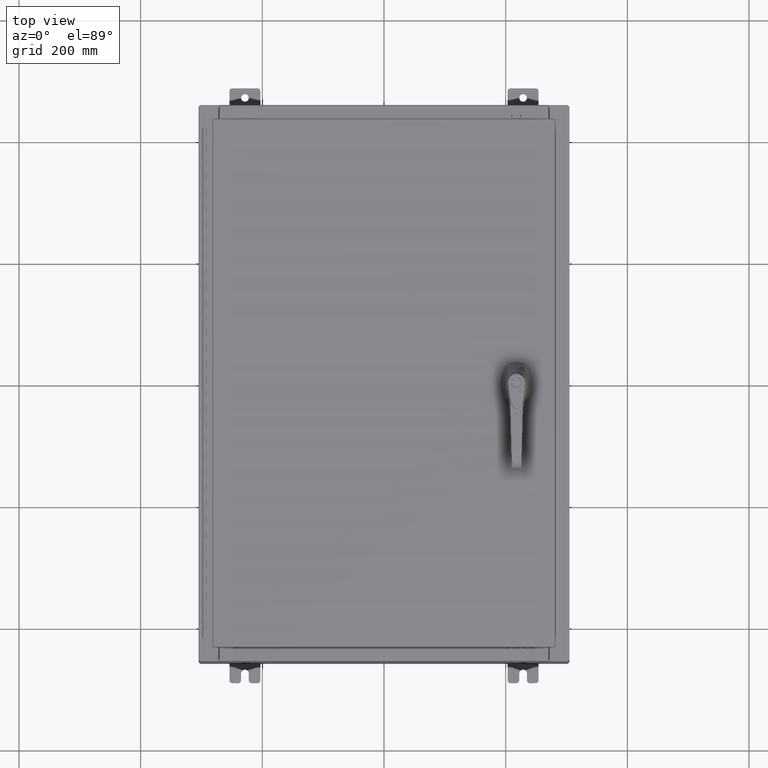
[diagram: clean part render]
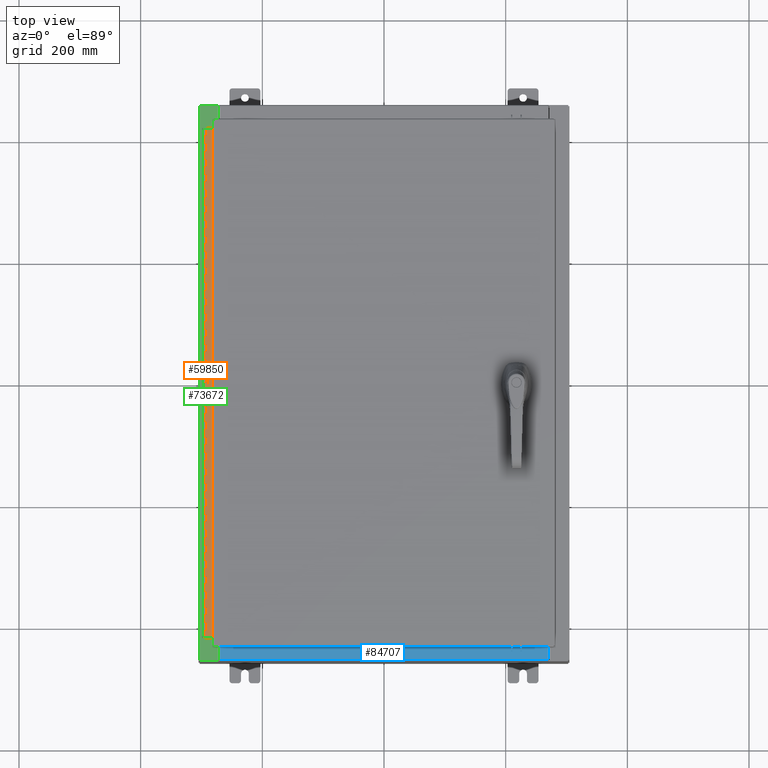
[diagram: same view with three faces highlighted in distinct colors, each labeled with its STEP entity id]
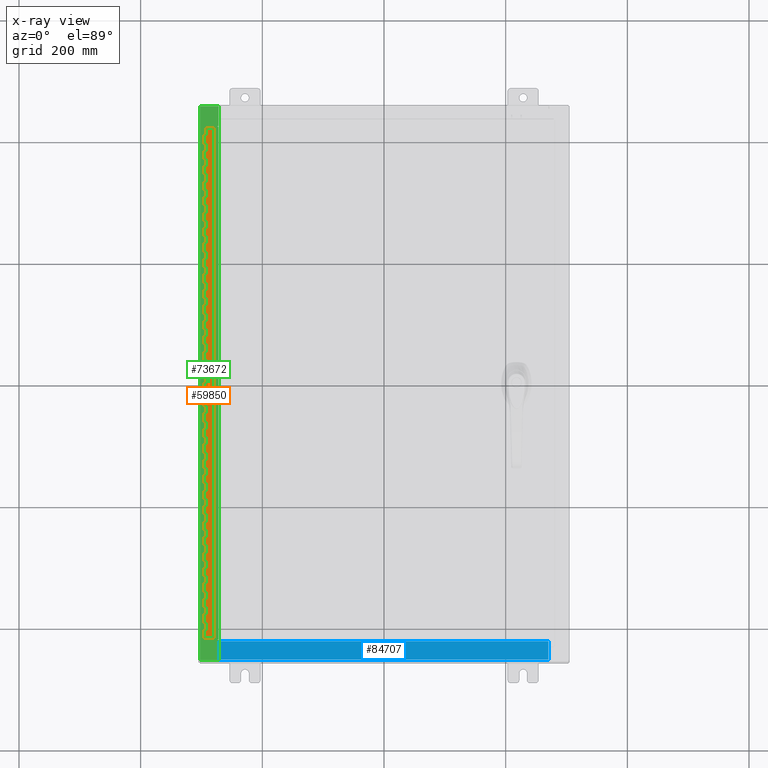
[diagram: x-ray of the same camera — body ghosted, the three highlighted faces saturated]
A machine part, top view with three faces highlighted in distinct colors.
The next image is the same camera in x-ray (body ghosted, the three faces saturated) — at least one of them is partly hidden behind the body in this view.
Their STEP definitions:

[orange] entity #59850 — the highlighted planar face has unit normal (-0, -0, 1).
#127 = CARTESIAN_POINT ( 'NONE',  ( -0.6869999999999978300, 0.6754999999999996600, -24.50000000000000000 ) ) ;
#291 = CARTESIAN_POINT ( 'NONE',  ( -0.6869999999999973900, 0.8004999999999995500, -19.00000000000000000 ) ) ;
#349 = VECTOR ( 'NONE', #56073, 39.37007874015748100 ) ;
#360 = VERTEX_POINT ( 'NONE', #80167 ) ;
#478 = VECTOR ( 'NONE', #55412, 39.37007874015748100 ) ;
#529 = VERTEX_POINT ( 'NONE', #28445 ) ;
#532 = LINE ( 'NONE', #68323, #94727 ) ;
#548 = DIRECTION ( 'NONE',  ( 0.0000000000000000000, -0.0000000000000000000, -1.000000000000000000 ) ) ;
#692 = DIRECTION ( 'NONE',  ( 0.0000000000000000000, -0.0000000000000000000, -1.000000000000000000 ) ) ;
#828 = VECTOR ( 'NONE', #14029, 39.37007874015748100 ) ;
#831 = LINE ( 'NONE', #15089, #72953 ) ;
#950 = VERTEX_POINT ( 'NONE', #33168 ) ;
#952 = EDGE_CURVE ( 'NONE', #30610, #84027, #57034, .T. ) ;
#1079 = VECTOR ( 'NONE', #65417, 39.37007874015748100 ) ;
#1244 = DIRECTION ( 'NONE',  ( 0.0000000000000000000, -0.0000000000000000000, -1.000000000000000000 ) ) ;
#1335 = ORIENTED_EDGE ( 'NONE', *, *, #99682, .T. ) ;
#1341 = DIRECTION ( 'NONE',  ( 0.0000000000000000000, 0.0000000000000000000, 1.000000000000000000 ) ) ;
#1574 = CARTESIAN_POINT ( 'NONE',  ( -0.6869999999999982800, 0.5504999999999997700, -2.000000000000000000 ) ) ;
#1590 = CARTESIAN_POINT ( 'NONE',  ( -0.6869999999999982800, 0.5504999999999997700, -30.50000000000000400 ) ) ;
#1781 = CARTESIAN_POINT ( 'NONE',  ( -0.6869999999999978300, 0.6754999999999996600, -7.499999999999999100 ) ) ;
#1904 = VERTEX_POINT ( 'NONE', #44979 ) ;
#1922 = CARTESIAN_POINT ( 'NONE',  ( -0.6869999999999973900, 0.8004999999999995500, -6.499999999999999100 ) ) ;
#2054 = VECTOR ( 'NONE', #33493, 39.37007874015748100 ) ;
#2092 = CARTESIAN_POINT ( 'NONE',  ( -0.6869999999999978300, 0.6754999999999996600, -23.99999999999999600 ) ) ;
#2271 = VERTEX_POINT ( 'NONE', #26513 ) ;
#2669 = EDGE_CURVE ( 'NONE', #6695, #1904, #16347, .T. ) ;
#2949 = DIRECTION ( 'NONE',  ( 0.0000000000000000000, 0.0000000000000000000, 1.000000000000000000 ) ) ;
#3244 = CARTESIAN_POINT ( 'NONE',  ( -0.6869999999999982800, 0.5504999999999997700, -18.50000000000000000 ) ) ;
#3251 = ORIENTED_EDGE ( 'NONE', *, *, #54686, .F. ) ;
#3354 = LINE ( 'NONE', #66309, #25440 ) ;
#3485 = DIRECTION ( 'NONE',  ( -3.389037039080723100E-015, -1.000000000000000000, 0.0000000000000000000 ) ) ;
#3507 = CARTESIAN_POINT ( 'NONE',  ( -0.6869999999999973900, 0.8004999999999995500, -24.50000000000000000 ) ) ;
#3601 = LINE ( 'NONE', #4733, #100673 ) ;
#3657 = CARTESIAN_POINT ( 'NONE',  ( -0.6869999999999978300, 0.6754999999999996600, -33.00000000000000000 ) ) ;
#3683 = CARTESIAN_POINT ( 'NONE',  ( -0.6869999999999978300, 0.6754999999999996600, -11.50000000000000000 ) ) ;
#3754 = VECTOR ( 'NONE', #81384, 39.37007874015748100 ) ;
#3756 = VERTEX_POINT ( 'NONE', #85931 ) ;
#3905 = CARTESIAN_POINT ( 'NONE',  ( -0.6869999999999973900, 0.8004999999999995500, -11.50000000000000000 ) ) ;
#4364 = EDGE_CURVE ( 'NONE', #9609, #67770, #44078, .T. ) ;
#4446 = VERTEX_POINT ( 'NONE', #85381 ) ;
#4448 = ORIENTED_EDGE ( 'NONE', *, *, #952, .F. ) ;
#4573 = VECTOR ( 'NONE', #46710, 39.37007874015748100 ) ;
#4661 = DIRECTION ( 'NONE',  ( 0.0000000000000000000, 0.0000000000000000000, 1.000000000000000000 ) ) ;
#4713 = ORIENTED_EDGE ( 'NONE', *, *, #65530, .F. ) ;
#4733 = CARTESIAN_POINT ( 'NONE',  ( -0.6869999999999973900, 0.8004999999999995500, -8.000000000000000000 ) ) ;
#4871 = DIRECTION ( 'NONE',  ( 0.0000000000000000000, -0.0000000000000000000, -1.000000000000000000 ) ) ;
#4941 = CARTESIAN_POINT ( 'NONE',  ( -0.6869999999999982800, 0.5504999999999997700, -2.999999999999999600 ) ) ;
#4987 = LINE ( 'NONE', #68787, #102043 ) ;
#4999 = CARTESIAN_POINT ( 'NONE',  ( -0.6869999999999973900, 0.8004999999999995500, -4.000000000000000000 ) ) ;
#5115 = VECTOR ( 'NONE', #65616, 39.37007874015748100 ) ;
#5179 = CARTESIAN_POINT ( 'NONE',  ( -0.6870000000000022800, -0.6245000000000003900, -33.00000000000000000 ) ) ;
#5586 = DIRECTION ( 'NONE',  ( -3.389037039080723100E-015, -1.000000000000000000, 0.0000000000000000000 ) ) ;
#5933 = VECTOR ( 'NONE', #23356, 39.37007874015748100 ) ;
#6255 = VECTOR ( 'NONE', #102507, 39.37007874015748100 ) ;
#6367 = VECTOR ( 'NONE', #101237, 39.37007874015748100 ) ;
#6379 = EDGE_CURVE ( 'NONE', #48075, #47525, #117334, .T. ) ;
#6486 = EDGE_CURVE ( 'NONE', #79084, #100684, #30528, .T. ) ;
#6695 = VERTEX_POINT ( 'NONE', #4941 ) ;
#6737 = VERTEX_POINT ( 'NONE', #63302 ) ;
#6783 = VECTOR ( 'NONE', #41759, 39.37007874015748100 ) ;
#6831 = CARTESIAN_POINT ( 'NONE',  ( -0.6869999999999982800, 0.5504999999999997700, -5.000000000000000000 ) ) ;
#7108 = DIRECTION ( 'NONE',  ( 3.389037039080723100E-015, 1.000000000000000000, -0.0000000000000000000 ) ) ;
#7135 = ORIENTED_EDGE ( 'NONE', *, *, #94001, .F. ) ;
#7555 = DIRECTION ( 'NONE',  ( 0.0000000000000000000, 0.0000000000000000000, 1.000000000000000000 ) ) ;
#7665 = VERTEX_POINT ( 'NONE', #76134 ) ;
#7745 = LINE ( 'NONE', #29255, #76862 ) ;
#7819 = CARTESIAN_POINT ( 'NONE',  ( -0.6869999999999978300, 0.6754999999999996600, 0.0000000000000000000 ) ) ;
#7939 = LINE ( 'NONE', #3905, #10905 ) ;
#8077 = VECTOR ( 'NONE', #57501, 39.37007874015748100 ) ;
#8108 = LINE ( 'NONE', #20022, #105236 ) ;
#8113 = CARTESIAN_POINT ( 'NONE',  ( -0.6869999999999982800, 0.5504999999999997700, -19.00000000000000000 ) ) ;
#8177 = CARTESIAN_POINT ( 'NONE',  ( -0.6869999999999998300, 0.07549999999999991400, -33.00000000000000000 ) ) ;
#8181 = EDGE_CURVE ( 'NONE', #87898, #65628, #34901, .T. ) ;
#8207 = VERTEX_POINT ( 'NONE', #109824 ) ;
#8240 = ORIENTED_EDGE ( 'NONE', *, *, #113711, .T. ) ;
#8705 = EDGE_CURVE ( 'NONE', #55197, #81898, #30431, .T. ) ;
#8768 = DIRECTION ( 'NONE',  ( 0.0000000000000000000, 0.0000000000000000000, 1.000000000000000000 ) ) ;
#8840 = LINE ( 'NONE', #70160, #5933 ) ;
#8907 = DIRECTION ( 'NONE',  ( 3.389037039080723100E-015, 1.000000000000000000, -0.0000000000000000000 ) ) ;
#9223 = CARTESIAN_POINT ( 'NONE',  ( -0.6869999999999978300, 0.6754999999999996600, -33.00000000000000000 ) ) ;
#9269 = CARTESIAN_POINT ( 'NONE',  ( -0.6869999999999982800, 0.5504999999999997700, -4.500000000000000000 ) ) ;
#9392 = EDGE_CURVE ( 'NONE', #25422, #42078, #105319, .T. ) ;
#9550 = LINE ( 'NONE', #84817, #31655 ) ;
#9609 = VERTEX_POINT ( 'NONE', #10002 ) ;
#9778 = DIRECTION ( 'NONE',  ( 0.0000000000000000000, -0.0000000000000000000, -1.000000000000000000 ) ) ;
#9792 = EDGE_CURVE ( 'NONE', #16241, #95369, #84639, .T. ) ;
#10002 = CARTESIAN_POINT ( 'NONE',  ( -0.6869999999999978300, 0.6754999999999996600, -22.50000000000000000 ) ) ;
#10171 = ORIENTED_EDGE ( 'NONE', *, *, #90580, .T. ) ;
#10258 = EDGE_CURVE ( 'NONE', #112332, #62232, #30193, .T. ) ;
#10905 = VECTOR ( 'NONE', #3485, 39.37007874015748100 ) ;
#10918 = EDGE_CURVE ( 'NONE', #51538, #72138, #22795, .T. ) ;
#10976 = CARTESIAN_POINT ( 'NONE',  ( -0.6869999999999982800, 0.5504999999999997700, -17.00000000000000000 ) ) ;
#10992 = CARTESIAN_POINT ( 'NONE',  ( -0.6869999999999982800, 0.5504999999999997700, -11.50000000000000000 ) ) ;
#11364 = ORIENTED_EDGE ( 'NONE', *, *, #8181, .F. ) ;
#11366 = VERTEX_POINT ( 'NONE', #103894 ) ;
#11496 = ORIENTED_EDGE ( 'NONE', *, *, #95689, .T. ) ;
#11501 = VECTOR ( 'NONE', #93568, 39.37007874015748100 ) ;
#11811 = EDGE_CURVE ( 'NONE', #51538, #81898, #94696, .T. ) ;
#11817 = DIRECTION ( 'NONE',  ( 3.389037039080723100E-015, 1.000000000000000000, -0.0000000000000000000 ) ) ;
#11878 = LINE ( 'NONE', #85699, #108985 ) ;
#12075 = CARTESIAN_POINT ( 'NONE',  ( -0.6869999999999973900, 0.8004999999999995500, -31.50000000000000400 ) ) ;
#12128 = LINE ( 'NONE', #80133, #59159 ) ;
#12237 = CARTESIAN_POINT ( 'NONE',  ( -0.6869999999999978300, 0.6754999999999996600, -12.49999999999999800 ) ) ;
#12582 = LINE ( 'NONE', #40704, #34643 ) ;
#12658 = CARTESIAN_POINT ( 'NONE',  ( -0.6869999999999978300, 0.6754999999999996600, -22.00000000000000000 ) ) ;
#12876 = DIRECTION ( 'NONE',  ( -3.389037039080723100E-015, -1.000000000000000000, 0.0000000000000000000 ) ) ;
#12909 = VERTEX_POINT ( 'NONE', #120371 ) ;
#12985 = CARTESIAN_POINT ( 'NONE',  ( -0.6869999999999973900, 0.8004999999999995500, -6.000000000000000900 ) ) ;
#13105 = VECTOR ( 'NONE', #78870, 39.37007874015748100 ) ;
#13665 = DIRECTION ( 'NONE',  ( 0.0000000000000000000, 0.0000000000000000000, 1.000000000000000000 ) ) ;
#13842 = LINE ( 'NONE', #4999, #57909 ) ;
#13854 = LINE ( 'NONE', #121062, #110911 ) ;
#13957 = LINE ( 'NONE', #21239, #60995 ) ;
#13998 = EDGE_CURVE ( 'NONE', #28940, #96982, #55181, .T. ) ;
#14029 = DIRECTION ( 'NONE',  ( 3.389037039080723100E-015, 1.000000000000000000, -0.0000000000000000000 ) ) ;
#14215 = CARTESIAN_POINT ( 'NONE',  ( -0.6869999999999978300, 0.6754999999999996600, -5.500000000000000000 ) ) ;
#14411 = CARTESIAN_POINT ( 'NONE',  ( -0.6869999999999978300, 0.6754999999999996600, -33.00000000000000000 ) ) ;
#14584 = CARTESIAN_POINT ( 'NONE',  ( -0.6869999999999973900, 0.8004999999999995500, -22.00000000000000000 ) ) ;
#14795 = DIRECTION ( 'NONE',  ( -3.389037039080723100E-015, -1.000000000000000000, 0.0000000000000000000 ) ) ;
#15040 = VERTEX_POINT ( 'NONE', #12658 ) ;
#15089 = CARTESIAN_POINT ( 'NONE',  ( -0.6869999999999973900, 0.8004999999999995500, -19.50000000000000000 ) ) ;
#15247 = CARTESIAN_POINT ( 'NONE',  ( -0.6869999999999978300, 0.6754999999999996600, -20.50000000000000400 ) ) ;
#15361 = ORIENTED_EDGE ( 'NONE', *, *, #88592, .F. ) ;
#15413 = EDGE_CURVE ( 'NONE', #71144, #118824, #13854, .T. ) ;
#15510 = EDGE_CURVE ( 'NONE', #12909, #103214, #35896, .T. ) ;
#15871 = VECTOR ( 'NONE', #23279, 39.37007874015748100 ) ;
#16044 = EDGE_CURVE ( 'NONE', #119981, #113584, #109390, .T. ) ;
#16049 = CARTESIAN_POINT ( 'NONE',  ( -0.6869999999999973900, 0.8004999999999995500, -9.000000000000000000 ) ) ;
#16216 = EDGE_CURVE ( 'NONE', #65572, #117508, #16666, .T. ) ;
#16241 = VERTEX_POINT ( 'NONE', #52603 ) ;
#16347 = LINE ( 'NONE', #40966, #88396 ) ;
#16458 = CARTESIAN_POINT ( 'NONE',  ( -0.6869999999999982800, 0.5504999999999997700, -8.500000000000000000 ) ) ;
#16590 = LINE ( 'NONE', #26328, #88644 ) ;
#16666 = LINE ( 'NONE', #71090, #113741 ) ;
#16693 = CARTESIAN_POINT ( 'NONE',  ( -0.6869999999999978300, 0.6754999999999996600, -19.00000000000000000 ) ) ;
#16901 = VECTOR ( 'NONE', #102174, 39.37007874015748100 ) ;
#17003 = VERTEX_POINT ( 'NONE', #8113 ) ;
#17250 = VERTEX_POINT ( 'NONE', #10976 ) ;
#17358 = VECTOR ( 'NONE', #99234, 39.37007874015748100 ) ;
#17611 = DIRECTION ( 'NONE',  ( 0.0000000000000000000, -0.0000000000000000000, -1.000000000000000000 ) ) ;
#17728 = CARTESIAN_POINT ( 'NONE',  ( -0.6869999999999973900, 0.8004999999999995500, -8.500000000000000000 ) ) ;
#18103 = DIRECTION ( 'NONE',  ( 0.0000000000000000000, -0.0000000000000000000, -1.000000000000000000 ) ) ;
#18204 = LINE ( 'NONE', #35735, #34388 ) ;
#18973 = DIRECTION ( 'NONE',  ( -3.389037039080723100E-015, -1.000000000000000000, 0.0000000000000000000 ) ) ;
#18994 = EDGE_CURVE ( 'NONE', #74063, #96982, #26612, .T. ) ;
#19080 = VECTOR ( 'NONE', #84563, 39.37007874015748100 ) ;
#19234 = VECTOR ( 'NONE', #88652, 39.37007874015748100 ) ;
#19286 = EDGE_CURVE ( 'NONE', #117565, #44523, #8840, .T. ) ;
#19495 = DIRECTION ( 'NONE',  ( 3.389037039080723100E-015, 1.000000000000000000, -0.0000000000000000000 ) ) ;
#19660 = VERTEX_POINT ( 'NONE', #83144 ) ;
#19860 = VERTEX_POINT ( 'NONE', #30095 ) ;
#20022 = CARTESIAN_POINT ( 'NONE',  ( -0.6869999999999982800, 0.5504999999999997700, -10.50000000000000000 ) ) ;
#20205 = CARTESIAN_POINT ( 'NONE',  ( -0.6869999999999982800, 0.5504999999999997700, -23.00000000000000000 ) ) ;
#20274 = LINE ( 'NONE', #10992, #67278 ) ;
#20285 = ORIENTED_EDGE ( 'NONE', *, *, #15413, .F. ) ;
#20350 = VECTOR ( 'NONE', #43983, 39.37007874015748100 ) ;
#20409 = VERTEX_POINT ( 'NONE', #111782 ) ;
#20587 = EDGE_CURVE ( 'NONE', #17003, #60879, #71982, .T. ) ;
#20598 = CARTESIAN_POINT ( 'NONE',  ( -0.6869999999999978300, 0.6754999999999996600, -33.00000000000000000 ) ) ;
#20680 = DIRECTION ( 'NONE',  ( 3.389037039080723100E-015, 1.000000000000000000, -0.0000000000000000000 ) ) ;
#20760 = EDGE_CURVE ( 'NONE', #82951, #74060, #76312, .T. ) ;
#21098 = LINE ( 'NONE', #107368, #68105 ) ;
#21239 = CARTESIAN_POINT ( 'NONE',  ( -0.6869999999999973900, 0.8004999999999995500, -27.50000000000000000 ) ) ;
#21260 = CARTESIAN_POINT ( 'NONE',  ( -0.6869999999999982800, 0.5504999999999997700, -1.499999999999999800 ) ) ;
#21297 = CARTESIAN_POINT ( 'NONE',  ( -0.6869999999999978300, 0.6754999999999996600, -9.000000000000000000 ) ) ;
#21408 = DIRECTION ( 'NONE',  ( 0.0000000000000000000, 0.0000000000000000000, 1.000000000000000000 ) ) ;
#21574 = ORIENTED_EDGE ( 'NONE', *, *, #34855, .F. ) ;
#21629 = LINE ( 'NONE', #62894, #96613 ) ;
#21808 = LINE ( 'NONE', #105402, #43865 ) ;
#22033 = CARTESIAN_POINT ( 'NONE',  ( -0.6869999999999978300, 0.6754999999999996600, -4.500000000000000000 ) ) ;
#22200 = ORIENTED_EDGE ( 'NONE', *, *, #90050, .F. ) ;
#22264 = ORIENTED_EDGE ( 'NONE', *, *, #32639, .F. ) ;
#22318 = CARTESIAN_POINT ( 'NONE',  ( -0.6869999999999982800, 0.5504999999999997700, -24.50000000000000000 ) ) ;
#22387 = VERTEX_POINT ( 'NONE', #68376 ) ;
#22449 = CARTESIAN_POINT ( 'NONE',  ( -0.6869999999999978300, 0.6754999999999996600, -26.00000000000000000 ) ) ;
#22458 = CARTESIAN_POINT ( 'NONE',  ( -0.6869999999999982800, 0.5504999999999997700, -3.500000000000000000 ) ) ;
#22564 = EDGE_CURVE ( 'NONE', #20409, #22387, #45227, .T. ) ;
#22595 = CARTESIAN_POINT ( 'NONE',  ( -0.6869999999999982800, 0.5504999999999997700, -22.00000000000000000 ) ) ;
#22795 = LINE ( 'NONE', #87128, #94815 ) ;
#22842 = VECTOR ( 'NONE', #87931, 39.37007874015748100 ) ;
#22982 = CARTESIAN_POINT ( 'NONE',  ( -0.6869999999999973900, 0.8004999999999995500, -14.49999999999999800 ) ) ;
#23064 = ORIENTED_EDGE ( 'NONE', *, *, #50628, .F. ) ;
#23279 = DIRECTION ( 'NONE',  ( 0.0000000000000000000, -0.0000000000000000000, -1.000000000000000000 ) ) ;
#23335 = VERTEX_POINT ( 'NONE', #43139 ) ;
#23356 = DIRECTION ( 'NONE',  ( 0.0000000000000000000, -0.0000000000000000000, -1.000000000000000000 ) ) ;
#23363 = ORIENTED_EDGE ( 'NONE', *, *, #89703, .F. ) ;
#23482 = VERTEX_POINT ( 'NONE', #100641 ) ;
#23628 = EDGE_CURVE ( 'NONE', #42588, #102540, #102416, .T. ) ;
#23641 = VECTOR ( 'NONE', #60744, 39.37007874015748100 ) ;
#23666 = CARTESIAN_POINT ( 'NONE',  ( -0.6869999999999982800, 0.5504999999999997700, -4.500000000000000000 ) ) ;
#23682 = VECTOR ( 'NONE', #57840, 39.37007874015748100 ) ;
#23886 = ORIENTED_EDGE ( 'NONE', *, *, #23628, .F. ) ;
#24030 = CARTESIAN_POINT ( 'NONE',  ( -0.6869999999999978300, 0.6754999999999996600, -33.00000000000000000 ) ) ;
#24245 = CARTESIAN_POINT ( 'NONE',  ( -0.6869999999999978300, 0.6754999999999996600, -0.5000000000000000000 ) ) ;
#24397 = VERTEX_POINT ( 'NONE', #127 ) ;
#24401 = DIRECTION ( 'NONE',  ( -3.389037039080723100E-015, -1.000000000000000000, 0.0000000000000000000 ) ) ;
#24447 = CARTESIAN_POINT ( 'NONE',  ( -0.6869999999999978300, 0.6754999999999996600, -17.00000000000000000 ) ) ;
#24481 = ORIENTED_EDGE ( 'NONE', *, *, #102175, .T. ) ;
#24577 = VECTOR ( 'NONE', #75446, 39.37007874015748100 ) ;
#24595 = CARTESIAN_POINT ( 'NONE',  ( -0.6869999999999978300, 0.6754999999999996600, -28.99999999999999600 ) ) ;
#24621 = CARTESIAN_POINT ( 'NONE',  ( -0.6869999999999978300, 0.6754999999999996600, -8.000000000000000000 ) ) ;
#24867 = CARTESIAN_POINT ( 'NONE',  ( -0.6869999999999982800, 0.5504999999999997700, -17.99999999999999600 ) ) ;
#24914 = VECTOR ( 'NONE', #95361, 39.37007874015748100 ) ;
#24939 = ORIENTED_EDGE ( 'NONE', *, *, #18994, .T. ) ;
#25220 = CARTESIAN_POINT ( 'NONE',  ( -0.6869999999999978300, 0.6754999999999996600, -33.00000000000000000 ) ) ;
#25237 = LINE ( 'NONE', #98927, #47272 ) ;
#25413 = VECTOR ( 'NONE', #114800, 39.37007874015748100 ) ;
#25422 = VERTEX_POINT ( 'NONE', #89511 ) ;
#25440 = VECTOR ( 'NONE', #19495, 39.37007874015748100 ) ;
#25443 = LINE ( 'NONE', #56491, #72467 ) ;
#25828 = CARTESIAN_POINT ( 'NONE',  ( -0.6869999999999982800, 0.5504999999999997700, -27.00000000000000000 ) ) ;
#25997 = LINE ( 'NONE', #54374, #75938 ) ;
#26035 = CARTESIAN_POINT ( 'NONE',  ( -0.6869999999999982800, 0.5504999999999997700, -23.50000000000000000 ) ) ;
#26183 = ORIENTED_EDGE ( 'NONE', *, *, #121951, .F. ) ;
#26202 = CARTESIAN_POINT ( 'NONE',  ( -0.6869999999999982800, 0.5504999999999997700, -6.499999999999999100 ) ) ;
#26282 = VERTEX_POINT ( 'NONE', #24595 ) ;
#26283 = EDGE_CURVE ( 'NONE', #80579, #119789, #115434, .T. ) ;
#26328 = CARTESIAN_POINT ( 'NONE',  ( -0.6869999999999978300, 0.6754999999999996600, -33.00000000000000000 ) ) ;
#26513 = CARTESIAN_POINT ( 'NONE',  ( -0.6869999999999978300, 0.6754999999999996600, -3.500000000000000000 ) ) ;
#26539 = CARTESIAN_POINT ( 'NONE',  ( -0.6869999999999978300, 0.6754999999999996600, -20.00000000000000000 ) ) ;
#26567 = LINE ( 'NONE', #51336, #23641 ) ;
#26612 = LINE ( 'NONE', #75933, #23682 ) ;
#26660 = LINE ( 'NONE', #26202, #104604 ) ;
#26674 = VECTOR ( 'NONE', #43552, 39.37007874015748100 ) ;
#26783 = EDGE_CURVE ( 'NONE', #71854, #529, #82965, .T. ) ;
#26800 = EDGE_CURVE ( 'NONE', #59720, #33044, #7939, .T. ) ;
#27131 = VECTOR ( 'NONE', #115973, 39.37007874015748100 ) ;
#27491 = EDGE_CURVE ( 'NONE', #37349, #114751, #44645, .T. ) ;
#27563 = ORIENTED_EDGE ( 'NONE', *, *, #108381, .F. ) ;
#27643 = DIRECTION ( 'NONE',  ( 0.0000000000000000000, 0.0000000000000000000, 1.000000000000000000 ) ) ;
#27779 = ORIENTED_EDGE ( 'NONE', *, *, #107601, .T. ) ;
#28026 = ORIENTED_EDGE ( 'NONE', *, *, #27491, .F. ) ;
#28124 = CARTESIAN_POINT ( 'NONE',  ( -0.6869999999999978300, 0.6754999999999996600, -10.00000000000000000 ) ) ;
#28234 = EDGE_CURVE ( 'NONE', #49371, #26282, #100446, .T. ) ;
#28297 = EDGE_CURVE ( 'NONE', #25422, #72068, #25443, .T. ) ;
#28317 = VECTOR ( 'NONE', #99076, 39.37007874015748100 ) ;
#28402 = CARTESIAN_POINT ( 'NONE',  ( -0.6869999999999978300, 0.6754999999999996600, -11.99999999999999800 ) ) ;
#28445 = CARTESIAN_POINT ( 'NONE',  ( -0.6869999999999978300, 0.6754999999999996600, -6.000000000000000900 ) ) ;
#28490 = VERTEX_POINT ( 'NONE', #22458 ) ;
#28614 = VERTEX_POINT ( 'NONE', #14215 ) ;
#28940 = VERTEX_POINT ( 'NONE', #68901 ) ;
#29057 = VERTEX_POINT ( 'NONE', #79561 ) ;
#29134 = VECTOR ( 'NONE', #11817, 39.37007874015748100 ) ;
#29176 = ORIENTED_EDGE ( 'NONE', *, *, #66794, .T. ) ;
#29209 = CARTESIAN_POINT ( 'NONE',  ( -0.6869999999999973900, 0.8004999999999995500, -20.50000000000000400 ) ) ;
#29255 = CARTESIAN_POINT ( 'NONE',  ( -0.6869999999999982800, 0.5504999999999997700, -21.50000000000000400 ) ) ;
#29409 = ORIENTED_EDGE ( 'NONE', *, *, #45201, .F. ) ;
#29905 = EDGE_CURVE ( 'NONE', #98689, #57988, #37008, .T. ) ;
#30095 = CARTESIAN_POINT ( 'NONE',  ( -0.6869999999999978300, 0.6754999999999996600, -7.000000000000000000 ) ) ;
#30193 = LINE ( 'NONE', #113869, #8077 ) ;
#30218 = DIRECTION ( 'NONE',  ( 3.389037039080723100E-015, 1.000000000000000000, -0.0000000000000000000 ) ) ;
#30220 = ORIENTED_EDGE ( 'NONE', *, *, #62442, .F. ) ;
#30311 = VERTEX_POINT ( 'NONE', #81268 ) ;
#30431 = LINE ( 'NONE', #68166, #102461 ) ;
#30467 = LINE ( 'NONE', #75029, #24577 ) ;
#30469 = EDGE_CURVE ( 'NONE', #91790, #43532, #107564, .T. ) ;
#30528 = LINE ( 'NONE', #115561, #80516 ) ;
#30535 = LINE ( 'NONE', #56717, #108512 ) ;
#30572 = LINE ( 'NONE', #20598, #105569 ) ;
#30610 = VERTEX_POINT ( 'NONE', #67228 ) ;
#30684 = LINE ( 'NONE', #58124, #55627 ) ;
#30814 = VECTOR ( 'NONE', #113488, 39.37007874015748100 ) ;
#31115 = CARTESIAN_POINT ( 'NONE',  ( -0.6869999999999998300, 0.07549999999999991400, 0.0000000000000000000 ) ) ;
#31246 = LINE ( 'NONE', #66114, #78278 ) ;
#31274 = LINE ( 'NONE', #14411, #28317 ) ;
#31400 = DIRECTION ( 'NONE',  ( 0.0000000000000000000, 0.0000000000000000000, 1.000000000000000000 ) ) ;
#31539 = EDGE_CURVE ( 'NONE', #80457, #96795, #117693, .T. ) ;
#31655 = VECTOR ( 'NONE', #75355, 39.37007874015748100 ) ;
#31893 = ORIENTED_EDGE ( 'NONE', *, *, #75785, .F. ) ;
#32166 = LINE ( 'NONE', #51740, #79192 ) ;
#32241 = ORIENTED_EDGE ( 'NONE', *, *, #29905, .F. ) ;
#32395 = CARTESIAN_POINT ( 'NONE',  ( -0.6869999999999973900, 0.8004999999999995500, -30.50000000000000400 ) ) ;
#32426 = DIRECTION ( 'NONE',  ( -3.389037039080723100E-015, -1.000000000000000000, 0.0000000000000000000 ) ) ;
#32639 = EDGE_CURVE ( 'NONE', #72068, #48075, #99879, .T. ) ;
#32701 = CARTESIAN_POINT ( 'NONE',  ( -0.6869999999999978300, 0.6754999999999996600, -10.50000000000000000 ) ) ;
#32847 = LINE ( 'NONE', #37295, #85752 ) ;
#32970 = VECTOR ( 'NONE', #47485, 39.37007874015748100 ) ;
#33044 = VERTEX_POINT ( 'NONE', #68756 ) ;
#33168 = CARTESIAN_POINT ( 'NONE',  ( -0.6869999999999978300, 0.6754999999999996600, -28.50000000000000000 ) ) ;
#33256 = VERTEX_POINT ( 'NONE', #90467 ) ;
#33297 = VECTOR ( 'NONE', #67383, 39.37007874015748100 ) ;
#33493 = DIRECTION ( 'NONE',  ( 0.0000000000000000000, 0.0000000000000000000, 1.000000000000000000 ) ) ;
#33877 = LINE ( 'NONE', #108684, #61785 ) ;
#34044 = DIRECTION ( 'NONE',  ( -3.389037039080723100E-015, -1.000000000000000000, 0.0000000000000000000 ) ) ;
#34072 = VECTOR ( 'NONE', #65344, 39.37007874015748100 ) ;
#34110 = CARTESIAN_POINT ( 'NONE',  ( -0.6869999999999973900, 0.8004999999999995500, -17.00000000000000000 ) ) ;
#34388 = VECTOR ( 'NONE', #82567, 39.37007874015748100 ) ;
#34431 = ORIENTED_EDGE ( 'NONE', *, *, #67156, .F. ) ;
#34519 = ORIENTED_EDGE ( 'NONE', *, *, #44151, .T. ) ;
#34545 = ORIENTED_EDGE ( 'NONE', *, *, #120338, .F. ) ;
#34563 = CARTESIAN_POINT ( 'NONE',  ( -0.6869999999999973900, 0.8004999999999995500, -23.00000000000000000 ) ) ;
#34576 = CARTESIAN_POINT ( 'NONE',  ( -0.6869999999999978300, 0.6754999999999996600, -33.00000000000000000 ) ) ;
#34643 = VECTOR ( 'NONE', #106439, 39.37007874015748100 ) ;
#34830 = CARTESIAN_POINT ( 'NONE',  ( -0.6869999999999982800, 0.5504999999999997700, -14.49999999999999800 ) ) ;
#34855 = EDGE_CURVE ( 'NONE', #40458, #93709, #30684, .T. ) ;
#34901 = LINE ( 'NONE', #119229, #106993 ) ;
#35081 = CARTESIAN_POINT ( 'NONE',  ( -0.6869999999999973900, 0.8004999999999995500, -21.00000000000000000 ) ) ;
#35129 = EDGE_CURVE ( 'NONE', #103214, #71144, #43893, .T. ) ;
#35705 = ORIENTED_EDGE ( 'NONE', *, *, #42110, .F. ) ;
#35735 = CARTESIAN_POINT ( 'NONE',  ( -0.6869999999999973900, 0.8004999999999995500, -27.00000000000000000 ) ) ;
#35802 = EDGE_CURVE ( 'NONE', #44763, #47525, #52592, .T. ) ;
#35896 = LINE ( 'NONE', #103798, #32970 ) ;
#36520 = LINE ( 'NONE', #9269, #11501 ) ;
#36582 = EDGE_CURVE ( 'NONE', #69089, #6695, #80425, .T. ) ;
#36714 = CARTESIAN_POINT ( 'NONE',  ( -0.6869999999999978300, 0.6754999999999996600, -23.50000000000000000 ) ) ;
#37008 = LINE ( 'NONE', #55863, #34072 ) ;
#37295 = CARTESIAN_POINT ( 'NONE',  ( -0.6870000000000022800, -0.6245000000000003900, 0.0000000000000000000 ) ) ;
#37349 = VERTEX_POINT ( 'NONE', #24245 ) ;
#37643 = CARTESIAN_POINT ( 'NONE',  ( -0.6869999999999982800, 0.5504999999999997700, -17.50000000000000000 ) ) ;
#37665 = VERTEX_POINT ( 'NONE', #26539 ) ;
#37886 = FACE_OUTER_BOUND ( 'NONE', #75997, .T. ) ;
#37909 = VERTEX_POINT ( 'NONE', #1781 ) ;
#38355 = EDGE_CURVE ( 'NONE', #57988, #40873, #7745, .T. ) ;
#38513 = VECTOR ( 'NONE', #45397, 39.37007874015748100 ) ;
#38709 = DIRECTION ( 'NONE',  ( -3.389037039080723100E-015, -1.000000000000000000, 0.0000000000000000000 ) ) ;
#38755 = EDGE_CURVE ( 'NONE', #7665, #43332, #31274, .T. ) ;
#38794 = CARTESIAN_POINT ( 'NONE',  ( -0.6869999999999978300, 0.6754999999999996600, -21.00000000000000000 ) ) ;
#38811 = CARTESIAN_POINT ( 'NONE',  ( -0.6869999999999982800, 0.5504999999999997700, -12.99999999999999800 ) ) ;
#38862 = ORIENTED_EDGE ( 'NONE', *, *, #38355, .F. ) ;
#39013 = EDGE_CURVE ( 'NONE', #117508, #72881, #94466, .T. ) ;
#39201 = VECTOR ( 'NONE', #51440, 39.37007874015748100 ) ;
#39208 = ORIENTED_EDGE ( 'NONE', *, *, #75885, .F. ) ;
#39215 = CARTESIAN_POINT ( 'NONE',  ( -0.6869999999999978300, 0.6754999999999996600, -13.50000000000000000 ) ) ;
#39272 = VECTOR ( 'NONE', #55759, 39.37007874015748100 ) ;
#39560 = ORIENTED_EDGE ( 'NONE', *, *, #16044, .F. ) ;
#39659 = DIRECTION ( 'NONE',  ( 0.0000000000000000000, -0.0000000000000000000, -1.000000000000000000 ) ) ;
#40189 = VERTEX_POINT ( 'NONE', #109408 ) ;
#40284 = ORIENTED_EDGE ( 'NONE', *, *, #26783, .T. ) ;
#40458 = VERTEX_POINT ( 'NONE', #102351 ) ;
#40527 = ORIENTED_EDGE ( 'NONE', *, *, #49302, .T. ) ;
#40704 = CARTESIAN_POINT ( 'NONE',  ( -0.6869999999999973900, 0.8004999999999995500, -20.00000000000000000 ) ) ;
#40873 = VERTEX_POINT ( 'NONE', #22595 ) ;
#40953 = EDGE_CURVE ( 'NONE', #114751, #104781, #26567, .T. ) ;
#40966 = CARTESIAN_POINT ( 'NONE',  ( -0.6869999999999973900, 0.8004999999999995500, -2.999999999999999600 ) ) ;
#41048 = CARTESIAN_POINT ( 'NONE',  ( -0.6869999999999978300, 0.6754999999999996600, -17.99999999999999600 ) ) ;
#41337 = CARTESIAN_POINT ( 'NONE',  ( -0.6869999999999978300, 0.6754999999999996600, -33.00000000000000000 ) ) ;
#41468 = VERTEX_POINT ( 'NONE', #22449 ) ;
#41554 = VECTOR ( 'NONE', #17611, 39.37007874015748100 ) ;
#41759 = DIRECTION ( 'NONE',  ( -3.389037039080723100E-015, -1.000000000000000000, 0.0000000000000000000 ) ) ;
#41783 = VECTOR ( 'NONE', #27643, 39.37007874015748100 ) ;
#42078 = VERTEX_POINT ( 'NONE', #47737 ) ;
#42110 = EDGE_CURVE ( 'NONE', #37909, #20409, #80806, .T. ) ;
#42233 = ORIENTED_EDGE ( 'NONE', *, *, #63252, .T. ) ;
#42477 = ORIENTED_EDGE ( 'NONE', *, *, #106543, .F. ) ;
#42483 = LINE ( 'NONE', #51656, #114517 ) ;
#42588 = VERTEX_POINT ( 'NONE', #38811 ) ;
#42638 = DIRECTION ( 'NONE',  ( 0.0000000000000000000, -0.0000000000000000000, -1.000000000000000000 ) ) ;
#42652 = ORIENTED_EDGE ( 'NONE', *, *, #46096, .F. ) ;
#42805 = VERTEX_POINT ( 'NONE', #79445 ) ;
#43108 = ORIENTED_EDGE ( 'NONE', *, *, #20587, .F. ) ;
#43129 = ORIENTED_EDGE ( 'NONE', *, *, #121936, .F. ) ;
#43139 = CARTESIAN_POINT ( 'NONE',  ( -0.6869999999999978300, 0.6754999999999996600, -31.50000000000000400 ) ) ;
#43332 = VERTEX_POINT ( 'NONE', #43570 ) ;
#43339 = VECTOR ( 'NONE', #13665, 39.37007874015748100 ) ;
#43424 = EDGE_CURVE ( 'NONE', #23482, #17250, #70313, .T. ) ;
#43479 = ORIENTED_EDGE ( 'NONE', *, *, #70032, .F. ) ;
#43532 = VERTEX_POINT ( 'NONE', #83778 ) ;
#43551 = VECTOR ( 'NONE', #65674, 39.37007874015748100 ) ;
#43552 = DIRECTION ( 'NONE',  ( 3.389037039080723100E-015, 1.000000000000000000, -0.0000000000000000000 ) ) ;
#43570 = CARTESIAN_POINT ( 'NONE',  ( -0.6869999999999978300, 0.6754999999999996600, -14.00000000000000000 ) ) ;
#43691 = CARTESIAN_POINT ( 'NONE',  ( -0.6869999999999978300, 0.6754999999999996600, -33.00000000000000000 ) ) ;
#43722 = DIRECTION ( 'NONE',  ( 0.0000000000000000000, 0.0000000000000000000, 1.000000000000000000 ) ) ;
#43855 = VERTEX_POINT ( 'NONE', #60263 ) ;
#43865 = VECTOR ( 'NONE', #39659, 39.37007874015748100 ) ;
#43893 = LINE ( 'NONE', #37643, #62948 ) ;
#43941 = DIRECTION ( 'NONE',  ( 1.000000000000000000, -3.369016658928398200E-015, 0.0000000000000000000 ) ) ;
#43983 = DIRECTION ( 'NONE',  ( 0.0000000000000000000, -0.0000000000000000000, -1.000000000000000000 ) ) ;
#44078 = LINE ( 'NONE', #122001, #19080 ) ;
#44151 = EDGE_CURVE ( 'NONE', #12909, #44826, #73125, .T. ) ;
#44290 = EDGE_CURVE ( 'NONE', #28614, #30311, #95208, .T. ) ;
#44327 = LINE ( 'NONE', #99320, #66357 ) ;
#44407 = ORIENTED_EDGE ( 'NONE', *, *, #2669, .F. ) ;
#44476 = CARTESIAN_POINT ( 'NONE',  ( -0.6869999999999978300, 0.6754999999999996600, -15.50000000000000000 ) ) ;
#44486 = EDGE_CURVE ( 'NONE', #46671, #26282, #30467, .T. ) ;
#44510 = DIRECTION ( 'NONE',  ( 3.389037039080723100E-015, 1.000000000000000000, -0.0000000000000000000 ) ) ;
#44523 = VERTEX_POINT ( 'NONE', #75848 ) ;
#44645 = LINE ( 'NONE', #92841, #478 ) ;
#44763 = VERTEX_POINT ( 'NONE', #70069 ) ;
#44826 = VERTEX_POINT ( 'NONE', #24447 ) ;
#44873 = ORIENTED_EDGE ( 'NONE', *, *, #97963, .F. ) ;
#44907 = VECTOR ( 'NONE', #74754, 39.37007874015748100 ) ;
#44943 = EDGE_CURVE ( 'NONE', #108118, #114993, #25997, .T. ) ;
#44979 = CARTESIAN_POINT ( 'NONE',  ( -0.6869999999999978300, 0.6754999999999996600, -2.999999999999999600 ) ) ;
#45063 = VECTOR ( 'NONE', #18103, 39.37007874015748100 ) ;
#45096 = DIRECTION ( 'NONE',  ( -3.389037039080723100E-015, -1.000000000000000000, 0.0000000000000000000 ) ) ;
#45201 = EDGE_CURVE ( 'NONE', #6737, #4446, #108325, .T. ) ;
#45227 = LINE ( 'NONE', #107836, #95241 ) ;
#45397 = DIRECTION ( 'NONE',  ( 0.0000000000000000000, 0.0000000000000000000, 1.000000000000000000 ) ) ;
#45601 = VECTOR ( 'NONE', #20680, 39.37007874015748100 ) ;
#45783 = CARTESIAN_POINT ( 'NONE',  ( -0.6869999999999978300, 0.6754999999999996600, -33.00000000000000000 ) ) ;
#45815 = DIRECTION ( 'NONE',  ( -3.389037039080723100E-015, -1.000000000000000000, 0.0000000000000000000 ) ) ;
#45929 = DIRECTION ( 'NONE',  ( 3.389037039080723100E-015, 1.000000000000000000, -0.0000000000000000000 ) ) ;
#45995 = VERTEX_POINT ( 'NONE', #24621 ) ;
#46096 = EDGE_CURVE ( 'NONE', #95828, #80457, #8108, .T. ) ;
#46182 = ORIENTED_EDGE ( 'NONE', *, *, #95117, .F. ) ;
#46412 = VECTOR ( 'NONE', #49240, 39.37007874015748100 ) ;
#46630 = DIRECTION ( 'NONE',  ( 3.389037039080723100E-015, 1.000000000000000000, -0.0000000000000000000 ) ) ;
#46647 = VERTEX_POINT ( 'NONE', #114141 ) ;
#46671 = VERTEX_POINT ( 'NONE', #58185 ) ;
#46710 = DIRECTION ( 'NONE',  ( 3.389037039080723100E-015, 1.000000000000000000, -0.0000000000000000000 ) ) ;
#46796 = EDGE_CURVE ( 'NONE', #51263, #121996, #13957, .T. ) ;
#46963 = CARTESIAN_POINT ( 'NONE',  ( -0.6869999999999973900, 0.8004999999999995500, -32.50000000000000000 ) ) ;
#47123 = ORIENTED_EDGE ( 'NONE', *, *, #39013, .F. ) ;
#47272 = VECTOR ( 'NONE', #42638, 39.37007874015748100 ) ;
#47469 = ORIENTED_EDGE ( 'NONE', *, *, #9792, .F. ) ;
#47485 = DIRECTION ( 'NONE',  ( -3.389037039080723100E-015, -1.000000000000000000, 0.0000000000000000000 ) ) ;
#47525 = VERTEX_POINT ( 'NONE', #115192 ) ;
#47547 = EDGE_CURVE ( 'NONE', #112332, #107589, #532, .T. ) ;
#47608 = LINE ( 'NONE', #46963, #116732 ) ;
#47626 = ORIENTED_EDGE ( 'NONE', *, *, #6486, .F. ) ;
#47688 = VECTOR ( 'NONE', #45815, 39.37007874015748100 ) ;
#47733 = EDGE_CURVE ( 'NONE', #58663, #107589, #13842, .T. ) ;
#47737 = CARTESIAN_POINT ( 'NONE',  ( -0.6869999999999978300, 0.6754999999999996600, -1.000000000000000000 ) ) ;
#47937 = LINE ( 'NONE', #77140, #72920 ) ;
#48013 = LINE ( 'NONE', #83866, #45063 ) ;
#48075 = VERTEX_POINT ( 'NONE', #1574 ) ;
#48308 = EDGE_CURVE ( 'NONE', #7665, #8207, #56349, .T. ) ;
#48365 = DIRECTION ( 'NONE',  ( 0.0000000000000000000, -0.0000000000000000000, -1.000000000000000000 ) ) ;
#49009 = DIRECTION ( 'NONE',  ( 3.389037039080723100E-015, 1.000000000000000000, -0.0000000000000000000 ) ) ;
#49240 = DIRECTION ( 'NONE',  ( -3.389037039080723100E-015, -1.000000000000000000, 0.0000000000000000000 ) ) ;
#49286 = VERTEX_POINT ( 'NONE', #38794 ) ;
#49302 = EDGE_CURVE ( 'NONE', #16241, #41468, #106832, .T. ) ;
#49371 = VERTEX_POINT ( 'NONE', #106174 ) ;
#49382 = LINE ( 'NONE', #1922, #46412 ) ;
#49447 = EDGE_CURVE ( 'NONE', #113584, #51196, #72948, .T. ) ;
#49502 = LINE ( 'NONE', #16458, #74463 ) ;
#49761 = CARTESIAN_POINT ( 'NONE',  ( -0.6869999999999973900, 0.8004999999999995500, -7.000000000000000000 ) ) ;
#49911 = EDGE_CURVE ( 'NONE', #71854, #11366, #49382, .T. ) ;
#50211 = CARTESIAN_POINT ( 'NONE',  ( -0.6869999999999973900, 0.8004999999999995500, -9.500000000000000000 ) ) ;
#50216 = LINE ( 'NONE', #93286, #53123 ) ;
#50459 = ORIENTED_EDGE ( 'NONE', *, *, #36582, .F. ) ;
#50628 = EDGE_CURVE ( 'NONE', #49371, #96036, #56778, .T. ) ;
#50644 = CARTESIAN_POINT ( 'NONE',  ( -0.6869999999999982800, 0.5504999999999997700, -27.50000000000000000 ) ) ;
#50772 = DIRECTION ( 'NONE',  ( 0.0000000000000000000, 0.0000000000000000000, 1.000000000000000000 ) ) ;
#50874 = EDGE_CURVE ( 'NONE', #29057, #45995, #117105, .T. ) ;
#50891 = EDGE_CURVE ( 'NONE', #97701, #119981, #89148, .T. ) ;
#50957 = VERTEX_POINT ( 'NONE', #93416 ) ;
#51178 = LINE ( 'NONE', #43691, #98232 ) ;
#51196 = VERTEX_POINT ( 'NONE', #2092 ) ;
#51263 = VERTEX_POINT ( 'NONE', #88038 ) ;
#51336 = CARTESIAN_POINT ( 'NONE',  ( -0.6869999999999982800, 0.5504999999999997700, -0.5000000000000000000 ) ) ;
#51368 = LINE ( 'NONE', #68204, #54286 ) ;
#51373 = VECTOR ( 'NONE', #70593, 39.37007874015748100 ) ;
#51393 = ORIENTED_EDGE ( 'NONE', *, *, #94152, .T. ) ;
#51440 = DIRECTION ( 'NONE',  ( 0.0000000000000000000, -0.0000000000000000000, -1.000000000000000000 ) ) ;
#51443 = EDGE_CURVE ( 'NONE', #81888, #92380, #103772, .T. ) ;
#51525 = DIRECTION ( 'NONE',  ( 0.0000000000000000000, -0.0000000000000000000, -1.000000000000000000 ) ) ;
#51538 = VERTEX_POINT ( 'NONE', #8177 ) ;
#51620 = EDGE_CURVE ( 'NONE', #71043, #95828, #119908, .T. ) ;
#51630 = ORIENTED_EDGE ( 'NONE', *, *, #121284, .F. ) ;
#51656 = CARTESIAN_POINT ( 'NONE',  ( -0.6869999999999973900, 0.8004999999999995500, -16.00000000000000000 ) ) ;
#51740 = CARTESIAN_POINT ( 'NONE',  ( -0.6869999999999978300, 0.6754999999999996600, -33.00000000000000000 ) ) ;
#52287 = ORIENTED_EDGE ( 'NONE', *, *, #95463, .F. ) ;
#52418 = ORIENTED_EDGE ( 'NONE', *, *, #28234, .T. ) ;
#52432 = VECTOR ( 'NONE', #45929, 39.37007874015748100 ) ;
#52523 = ORIENTED_EDGE ( 'NONE', *, *, #10258, .F. ) ;
#52592 = LINE ( 'NONE', #65172, #77574 ) ;
#52603 = CARTESIAN_POINT ( 'NONE',  ( -0.6869999999999978300, 0.6754999999999996600, -26.50000000000000400 ) ) ;
#52666 = VECTOR ( 'NONE', #44510, 39.37007874015748100 ) ;
#52810 = LINE ( 'NONE', #29209, #24914 ) ;
#53100 = DIRECTION ( 'NONE',  ( 0.0000000000000000000, 0.0000000000000000000, 1.000000000000000000 ) ) ;
#53123 = VECTOR ( 'NONE', #102756, 39.37007874015748100 ) ;
#53337 = ORIENTED_EDGE ( 'NONE', *, *, #85885, .F. ) ;
#53375 = ORIENTED_EDGE ( 'NONE', *, *, #117528, .F. ) ;
#53571 = CARTESIAN_POINT ( 'NONE',  ( -0.6869999999999973900, 0.8004999999999995500, -23.50000000000000000 ) ) ;
#53670 = EDGE_CURVE ( 'NONE', #28614, #93111, #121092, .T. ) ;
#54286 = VECTOR ( 'NONE', #76824, 39.37007874015748100 ) ;
#54363 = EDGE_CURVE ( 'NONE', #19660, #19860, #118052, .T. ) ;
#54374 = CARTESIAN_POINT ( 'NONE',  ( -0.6869999999999973900, 0.8004999999999995500, -10.00000000000000000 ) ) ;
#54419 = ORIENTED_EDGE ( 'NONE', *, *, #4364, .F. ) ;
#54511 = EDGE_CURVE ( 'NONE', #82951, #83968, #12128, .T. ) ;
#54514 = ORIENTED_EDGE ( 'NONE', *, *, #120959, .T. ) ;
#54553 = LINE ( 'NONE', #34110, #26674 ) ;
#54609 = DIRECTION ( 'NONE',  ( 0.0000000000000000000, 0.0000000000000000000, 1.000000000000000000 ) ) ;
#54671 = ORIENTED_EDGE ( 'NONE', *, *, #22564, .F. ) ;
#54686 = EDGE_CURVE ( 'NONE', #95369, #69260, #31246, .T. ) ;
#55181 = LINE ( 'NONE', #16049, #108219 ) ;
#55197 = VERTEX_POINT ( 'NONE', #102166 ) ;
#55412 = DIRECTION ( 'NONE',  ( -3.389037039080723100E-015, -1.000000000000000000, 0.0000000000000000000 ) ) ;
#55627 = VECTOR ( 'NONE', #30218, 39.37007874015748100 ) ;
#55759 = DIRECTION ( 'NONE',  ( 0.0000000000000000000, -0.0000000000000000000, -1.000000000000000000 ) ) ;
#55863 = CARTESIAN_POINT ( 'NONE',  ( -0.6869999999999973900, 0.8004999999999995500, -21.50000000000000400 ) ) ;
#55879 = ORIENTED_EDGE ( 'NONE', *, *, #115538, .T. ) ;
#55938 = EDGE_CURVE ( 'NONE', #17250, #44826, #54553, .T. ) ;
#56024 = ORIENTED_EDGE ( 'NONE', *, *, #79973, .F. ) ;
#56073 = DIRECTION ( 'NONE',  ( 0.0000000000000000000, 0.0000000000000000000, 1.000000000000000000 ) ) ;
#56137 = ORIENTED_EDGE ( 'NONE', *, *, #13998, .F. ) ;
#56236 = LINE ( 'NONE', #121410, #6255 ) ;
#56349 = LINE ( 'NONE', #22982, #103463 ) ;
#56491 = CARTESIAN_POINT ( 'NONE',  ( -0.6869999999999973900, 0.8004999999999995500, -1.499999999999999800 ) ) ;
#56717 = CARTESIAN_POINT ( 'NONE',  ( -0.6869999999999973900, 0.8004999999999995500, -3.500000000000000000 ) ) ;
#56723 = VECTOR ( 'NONE', #692, 39.37007874015748100 ) ;
#56778 = LINE ( 'NONE', #60191, #6783 ) ;
#57034 = LINE ( 'NONE', #82974, #29134 ) ;
#57357 = ORIENTED_EDGE ( 'NONE', *, *, #83092, .F. ) ;
#57450 = LINE ( 'NONE', #25220, #107538 ) ;
#57501 = DIRECTION ( 'NONE',  ( -3.389037039080723100E-015, -1.000000000000000000, 0.0000000000000000000 ) ) ;
#57505 = CARTESIAN_POINT ( 'NONE',  ( -0.6869999999999978300, 0.6754999999999996600, -30.50000000000000400 ) ) ;
#57583 = ORIENTED_EDGE ( 'NONE', *, *, #53670, .T. ) ;
#57840 = DIRECTION ( 'NONE',  ( 0.0000000000000000000, 0.0000000000000000000, 1.000000000000000000 ) ) ;
#57909 = VECTOR ( 'NONE', #80206, 39.37007874015748100 ) ;
#57951 = VECTOR ( 'NONE', #50772, 39.37007874015748100 ) ;
#57966 = EDGE_CURVE ( 'NONE', #91612, #117565, #52810, .T. ) ;
#57988 = VERTEX_POINT ( 'NONE', #67393 ) ;
#58024 = ORIENTED_EDGE ( 'NONE', *, *, #79054, .T. ) ;
#58124 = CARTESIAN_POINT ( 'NONE',  ( -0.6869999999999973900, 0.8004999999999995500, -31.00000000000000000 ) ) ;
#58185 = CARTESIAN_POINT ( 'NONE',  ( -0.6869999999999982800, 0.5504999999999997700, -28.99999999999999600 ) ) ;
#58231 = LINE ( 'NONE', #1590, #33297 ) ;
#58288 = CARTESIAN_POINT ( 'NONE',  ( -0.6869999999999978300, 0.6754999999999996600, -19.50000000000000000 ) ) ;
#58430 = VERTEX_POINT ( 'NONE', #59045 ) ;
#58663 = VERTEX_POINT ( 'NONE', #109195 ) ;
#58755 = VECTOR ( 'NONE', #78715, 39.37007874015748100 ) ;
#59045 = CARTESIAN_POINT ( 'NONE',  ( -0.6869999999999982800, 0.5504999999999997700, -31.50000000000000400 ) ) ;
#59159 = VECTOR ( 'NONE', #117550, 39.37007874015748100 ) ;
#59557 = EDGE_CURVE ( 'NONE', #37909, #19860, #30572, .T. ) ;
#59597 = ORIENTED_EDGE ( 'NONE', *, *, #101032, .F. ) ;
#59614 = ORIENTED_EDGE ( 'NONE', *, *, #51620, .F. ) ;
#59720 = VERTEX_POINT ( 'NONE', #3683 ) ;
#59850 = ADVANCED_FACE ( 'NONE', ( #37886 ), #71865, .T. ) ;
#59926 = DIRECTION ( 'NONE',  ( -3.389037039080723100E-015, -1.000000000000000000, 0.0000000000000000000 ) ) ;
#60053 = DIRECTION ( 'NONE',  ( 0.0000000000000000000, -0.0000000000000000000, -1.000000000000000000 ) ) ;
#60175 = VECTOR ( 'NONE', #110072, 39.37007874015748100 ) ;
#60191 = CARTESIAN_POINT ( 'NONE',  ( -0.6869999999999973900, 0.8004999999999995500, -29.50000000000000000 ) ) ;
#60263 = CARTESIAN_POINT ( 'NONE',  ( -0.6869999999999982800, 0.5504999999999997700, -14.00000000000000000 ) ) ;
#60432 = CARTESIAN_POINT ( 'NONE',  ( -0.6869999999999982800, 0.5504999999999997700, -2.500000000000000000 ) ) ;
#60582 = VERTEX_POINT ( 'NONE', #12237 ) ;
#60697 = EDGE_CURVE ( 'NONE', #42805, #83968, #121167, .T. ) ;
#60744 = DIRECTION ( 'NONE',  ( 0.0000000000000000000, -0.0000000000000000000, -1.000000000000000000 ) ) ;
#60789 = CARTESIAN_POINT ( 'NONE',  ( -0.6869999999999973900, 0.8004999999999995500, -26.00000000000000000 ) ) ;
#60879 = VERTEX_POINT ( 'NONE', #16693 ) ;
#60995 = VECTOR ( 'NONE', #106287, 39.37007874015748100 ) ;
#61034 = ORIENTED_EDGE ( 'NONE', *, *, #47547, .T. ) ;
#61088 = DIRECTION ( 'NONE',  ( 3.389037039080723100E-015, 1.000000000000000000, -0.0000000000000000000 ) ) ;
#61121 = DIRECTION ( 'NONE',  ( 3.389037039080723100E-015, 1.000000000000000000, -0.0000000000000000000 ) ) ;
#61173 = DIRECTION ( 'NONE',  ( 0.0000000000000000000, 0.0000000000000000000, 1.000000000000000000 ) ) ;
#61182 = CARTESIAN_POINT ( 'NONE',  ( -0.6869999999999982800, 0.5504999999999997700, -2.500000000000000000 ) ) ;
#61216 = LINE ( 'NONE', #78865, #105349 ) ;
#61348 = CARTESIAN_POINT ( 'NONE',  ( -0.6869999999999982800, 0.5504999999999997700, -11.00000000000000000 ) ) ;
#61407 = VECTOR ( 'NONE', #92932, 39.37007874015748100 ) ;
#61763 = ORIENTED_EDGE ( 'NONE', *, *, #40953, .F. ) ;
#61785 = VECTOR ( 'NONE', #24401, 39.37007874015748100 ) ;
#61811 = DIRECTION ( 'NONE',  ( 3.389037039080723100E-015, 1.000000000000000000, -0.0000000000000000000 ) ) ;
#61922 = ORIENTED_EDGE ( 'NONE', *, *, #48308, .F. ) ;
#61968 = VECTOR ( 'NONE', #81405, 39.37007874015748100 ) ;
#62232 = VERTEX_POINT ( 'NONE', #23666 ) ;
#62251 = CARTESIAN_POINT ( 'NONE',  ( -0.6869999999999982800, 0.5504999999999997700, -11.99999999999999800 ) ) ;
#62442 = EDGE_CURVE ( 'NONE', #50957, #55197, #47608, .T. ) ;
#62747 = EDGE_CURVE ( 'NONE', #950, #84027, #21098, .T. ) ;
#62894 = CARTESIAN_POINT ( 'NONE',  ( -0.6869999999999978300, 0.6754999999999996600, -33.00000000000000000 ) ) ;
#62948 = VECTOR ( 'NONE', #548, 39.37007874015748100 ) ;
#63050 = ORIENTED_EDGE ( 'NONE', *, *, #57966, .F. ) ;
#63110 = VECTOR ( 'NONE', #85020, 39.37007874015748100 ) ;
#63119 = LINE ( 'NONE', #34830, #60175 ) ;
#63252 = EDGE_CURVE ( 'NONE', #59720, #96795, #16590, .T. ) ;
#63283 = DIRECTION ( 'NONE',  ( 0.0000000000000000000, -0.0000000000000000000, -1.000000000000000000 ) ) ;
#63302 = CARTESIAN_POINT ( 'NONE',  ( -0.6869999999999982800, 0.5504999999999997700, -19.50000000000000000 ) ) ;
#63466 = LINE ( 'NONE', #120585, #38513 ) ;
#63528 = CARTESIAN_POINT ( 'NONE',  ( -0.6869999999999978300, 0.6754999999999996600, -33.00000000000000000 ) ) ;
#63673 = CARTESIAN_POINT ( 'NONE',  ( -0.6869999999999982800, 0.5504999999999997700, -17.50000000000000000 ) ) ;
#63834 = ORIENTED_EDGE ( 'NONE', *, *, #81475, .F. ) ;
#63947 = DIRECTION ( 'NONE',  ( 0.0000000000000000000, -0.0000000000000000000, -1.000000000000000000 ) ) ;
#64024 = CARTESIAN_POINT ( 'NONE',  ( -0.6869999999999982800, 0.5504999999999997700, -15.50000000000000000 ) ) ;
#64110 = VECTOR ( 'NONE', #119359, 39.37007874015748100 ) ;
#64866 = ORIENTED_EDGE ( 'NONE', *, *, #44943, .F. ) ;
#65113 = VERTEX_POINT ( 'NONE', #6831 ) ;
#65172 = CARTESIAN_POINT ( 'NONE',  ( -0.6869999999999978300, 0.6754999999999996600, -33.00000000000000000 ) ) ;
#65197 = EDGE_CURVE ( 'NONE', #11366, #19660, #26660, .T. ) ;
#65344 = DIRECTION ( 'NONE',  ( -3.389037039080723100E-015, -1.000000000000000000, 0.0000000000000000000 ) ) ;
#65417 = DIRECTION ( 'NONE',  ( 3.389037039080723100E-015, 1.000000000000000000, -0.0000000000000000000 ) ) ;
#65530 = EDGE_CURVE ( 'NONE', #33256, #46647, #11878, .T. ) ;
#65572 = VERTEX_POINT ( 'NONE', #95970 ) ;
#65616 = DIRECTION ( 'NONE',  ( 3.389037039080723100E-015, 1.000000000000000000, -0.0000000000000000000 ) ) ;
#65628 = VERTEX_POINT ( 'NONE', #68424 ) ;
#65674 = DIRECTION ( 'NONE',  ( 0.0000000000000000000, 0.0000000000000000000, 1.000000000000000000 ) ) ;
#65928 = VECTOR ( 'NONE', #49009, 39.37007874015748100 ) ;
#66114 = CARTESIAN_POINT ( 'NONE',  ( -0.6869999999999982800, 0.5504999999999997700, -26.50000000000000400 ) ) ;
#66146 = CARTESIAN_POINT ( 'NONE',  ( -0.6869999999999978300, 0.6754999999999996600, -28.00000000000000000 ) ) ;
#66309 = CARTESIAN_POINT ( 'NONE',  ( -0.6869999999999973900, 0.8004999999999995500, -24.99999999999999600 ) ) ;
#66357 = VECTOR ( 'NONE', #5586, 39.37007874015748100 ) ;
#66560 = ORIENTED_EDGE ( 'NONE', *, *, #54363, .F. ) ;
#66794 = EDGE_CURVE ( 'NONE', #80579, #43532, #32166, .T. ) ;
#67060 = VECTOR ( 'NONE', #90584, 39.37007874015748100 ) ;
#67156 = EDGE_CURVE ( 'NONE', #62232, #65113, #36520, .T. ) ;
#67179 = LINE ( 'NONE', #121569, #39272 ) ;
#67228 = CARTESIAN_POINT ( 'NONE',  ( -0.6869999999999982800, 0.5504999999999997700, -28.00000000000000000 ) ) ;
#67236 = ORIENTED_EDGE ( 'NONE', *, *, #80255, .T. ) ;
#67278 = VECTOR ( 'NONE', #104733, 39.37007874015748100 ) ;
#67383 = DIRECTION ( 'NONE',  ( 0.0000000000000000000, -0.0000000000000000000, -1.000000000000000000 ) ) ;
#67393 = CARTESIAN_POINT ( 'NONE',  ( -0.6869999999999982800, 0.5504999999999997700, -21.50000000000000400 ) ) ;
#67551 = EDGE_CURVE ( 'NONE', #28490, #58663, #112928, .T. ) ;
#67645 = ORIENTED_EDGE ( 'NONE', *, *, #9392, .T. ) ;
#67770 = VERTEX_POINT ( 'NONE', #69519 ) ;
#68105 = VECTOR ( 'NONE', #69517, 39.37007874015748100 ) ;
#68157 = CARTESIAN_POINT ( 'NONE',  ( -0.6869999999999982800, 0.5504999999999997700, -13.50000000000000000 ) ) ;
#68166 = CARTESIAN_POINT ( 'NONE',  ( -0.6869999999999982800, 0.5504999999999997700, -32.50000000000000000 ) ) ;
#68204 = CARTESIAN_POINT ( 'NONE',  ( -0.6869999999999982800, 0.5504999999999997700, -29.50000000000000000 ) ) ;
#68246 = ORIENTED_EDGE ( 'NONE', *, *, #8705, .F. ) ;
#68323 = CARTESIAN_POINT ( 'NONE',  ( -0.6869999999999978300, 0.6754999999999996600, -33.00000000000000000 ) ) ;
#68376 = CARTESIAN_POINT ( 'NONE',  ( -0.6869999999999982800, 0.5504999999999997700, -8.000000000000000000 ) ) ;
#68424 = CARTESIAN_POINT ( 'NONE',  ( -0.6869999999999978300, 0.6754999999999996600, -32.00000000000000000 ) ) ;
#68558 = ORIENTED_EDGE ( 'NONE', *, *, #19286, .F. ) ;
#68756 = CARTESIAN_POINT ( 'NONE',  ( -0.6869999999999982800, 0.5504999999999997700, -11.50000000000000000 ) ) ;
#68787 = CARTESIAN_POINT ( 'NONE',  ( -0.6869999999999978300, 0.6754999999999996600, -33.00000000000000000 ) ) ;
#68882 = CARTESIAN_POINT ( 'NONE',  ( -0.6869999999999982800, 0.5504999999999997700, -24.99999999999999600 ) ) ;
#68901 = CARTESIAN_POINT ( 'NONE',  ( -0.6869999999999982800, 0.5504999999999997700, -9.000000000000000000 ) ) ;
#69089 = VERTEX_POINT ( 'NONE', #61182 ) ;
#69179 = CARTESIAN_POINT ( 'NONE',  ( -0.6869999999999973900, 0.8004999999999995500, -26.50000000000000400 ) ) ;
#69260 = VERTEX_POINT ( 'NONE', #25828 ) ;
#69452 = AXIS2_PLACEMENT_3D ( 'NONE', #100236, #43941, #109716 ) ;
#69517 = DIRECTION ( 'NONE',  ( 0.0000000000000000000, 0.0000000000000000000, 1.000000000000000000 ) ) ;
#69519 = CARTESIAN_POINT ( 'NONE',  ( -0.6869999999999982800, 0.5504999999999997700, -22.50000000000000000 ) ) ;
#69752 = VERTEX_POINT ( 'NONE', #28402 ) ;
#69850 = CARTESIAN_POINT ( 'NONE',  ( -0.6869999999999978300, 0.6754999999999996600, -27.00000000000000000 ) ) ;
#69901 = DIRECTION ( 'NONE',  ( 0.0000000000000000000, -0.0000000000000000000, -1.000000000000000000 ) ) ;
#69976 = CARTESIAN_POINT ( 'NONE',  ( -0.6869999999999982800, 0.5504999999999997700, -26.00000000000000000 ) ) ;
#70014 = ORIENTED_EDGE ( 'NONE', *, *, #10918, .F. ) ;
#70032 = EDGE_CURVE ( 'NONE', #4446, #37665, #12582, .T. ) ;
#70069 = CARTESIAN_POINT ( 'NONE',  ( -0.6869999999999978300, 0.6754999999999996600, -2.500000000000000000 ) ) ;
#70145 = VECTOR ( 'NONE', #8907, 39.37007874015748100 ) ;
#70160 = CARTESIAN_POINT ( 'NONE',  ( -0.6869999999999982800, 0.5504999999999997700, -20.50000000000000400 ) ) ;
#70173 = CARTESIAN_POINT ( 'NONE',  ( -0.6869999999999973900, 0.8004999999999995500, -29.99999999999999600 ) ) ;
#70271 = DIRECTION ( 'NONE',  ( 3.389037039080723100E-015, 1.000000000000000000, -0.0000000000000000000 ) ) ;
#70313 = LINE ( 'NONE', #119565, #20350 ) ;
#70380 = ORIENTED_EDGE ( 'NONE', *, *, #38755, .T. ) ;
#70427 = LINE ( 'NONE', #3507, #92450 ) ;
#70593 = DIRECTION ( 'NONE',  ( -3.389037039080723100E-015, -1.000000000000000000, 0.0000000000000000000 ) ) ;
#70625 = ORIENTED_EDGE ( 'NONE', *, *, #46796, .F. ) ;
#70648 = CARTESIAN_POINT ( 'NONE',  ( -0.6869999999999982800, 0.5504999999999997700, -24.50000000000000000 ) ) ;
#70760 = CARTESIAN_POINT ( 'NONE',  ( -0.6869999999999973900, 0.8004999999999995500, -1.000000000000000000 ) ) ;
#71043 = VERTEX_POINT ( 'NONE', #32701 ) ;
#71071 = EDGE_CURVE ( 'NONE', #22387, #45995, #3601, .T. ) ;
#71090 = CARTESIAN_POINT ( 'NONE',  ( -0.6869999999999973900, 0.8004999999999995500, -25.50000000000000400 ) ) ;
#71144 = VERTEX_POINT ( 'NONE', #24867 ) ;
#71330 = DIRECTION ( 'NONE',  ( 3.369016658928398200E-015, 1.000000000000000000, 0.0000000000000000000 ) ) ;
#71517 = ORIENTED_EDGE ( 'NONE', *, *, #99747, .F. ) ;
#71553 = ORIENTED_EDGE ( 'NONE', *, *, #59557, .T. ) ;
#71820 = DIRECTION ( 'NONE',  ( 0.0000000000000000000, 0.0000000000000000000, 1.000000000000000000 ) ) ;
#71854 = VERTEX_POINT ( 'NONE', #111388 ) ;
#71865 = PLANE ( 'NONE',  #69452 ) ;
#71982 = LINE ( 'NONE', #291, #63110 ) ;
#72068 = VERTEX_POINT ( 'NONE', #21260 ) ;
#72138 = VERTEX_POINT ( 'NONE', #31115 ) ;
#72381 = VERTEX_POINT ( 'NONE', #62251 ) ;
#72467 = VECTOR ( 'NONE', #84878, 39.37007874015748100 ) ;
#72541 = ORIENTED_EDGE ( 'NONE', *, *, #121176, .F. ) ;
#72568 = ORIENTED_EDGE ( 'NONE', *, *, #102027, .F. ) ;
#72711 = EDGE_CURVE ( 'NONE', #107847, #3756, #3354, .T. ) ;
#72881 = VERTEX_POINT ( 'NONE', #69976 ) ;
#72920 = VECTOR ( 'NONE', #8768, 39.37007874015748100 ) ;
#72948 = LINE ( 'NONE', #117183, #828 ) ;
#72953 = VECTOR ( 'NONE', #108849, 39.37007874015748100 ) ;
#72967 = VERTEX_POINT ( 'NONE', #7819 ) ;
#73125 = LINE ( 'NONE', #109263, #92244 ) ;
#74060 = VERTEX_POINT ( 'NONE', #121561 ) ;
#74063 = VERTEX_POINT ( 'NONE', #102659 ) ;
#74463 = VECTOR ( 'NONE', #63283, 39.37007874015748100 ) ;
#74466 = CARTESIAN_POINT ( 'NONE',  ( -0.6869999999999973900, 0.8004999999999995500, -2.000000000000000000 ) ) ;
#74574 = CARTESIAN_POINT ( 'NONE',  ( -0.6869999999999973900, 0.8004999999999995500, -5.000000000000000000 ) ) ;
#74698 = CARTESIAN_POINT ( 'NONE',  ( -0.6869999999999982800, 0.5504999999999997700, -23.50000000000000000 ) ) ;
#74754 = DIRECTION ( 'NONE',  ( -3.389037039080723100E-015, -1.000000000000000000, 0.0000000000000000000 ) ) ;
#74831 = VECTOR ( 'NONE', #104640, 39.37007874015748100 ) ;
#75029 = CARTESIAN_POINT ( 'NONE',  ( -0.6869999999999973900, 0.8004999999999995500, -28.99999999999999600 ) ) ;
#75073 = ORIENTED_EDGE ( 'NONE', *, *, #67551, .F. ) ;
#75355 = DIRECTION ( 'NONE',  ( 0.0000000000000000000, 0.0000000000000000000, 1.000000000000000000 ) ) ;
#75446 = DIRECTION ( 'NONE',  ( 3.389037039080723100E-015, 1.000000000000000000, -0.0000000000000000000 ) ) ;
#75599 = LINE ( 'NONE', #92674, #47688 ) ;
#75785 = EDGE_CURVE ( 'NONE', #30311, #115543, #25237, .T. ) ;
#75848 = CARTESIAN_POINT ( 'NONE',  ( -0.6869999999999982800, 0.5504999999999997700, -21.00000000000000000 ) ) ;
#75885 = EDGE_CURVE ( 'NONE', #44763, #69089, #44327, .T. ) ;
#75933 = CARTESIAN_POINT ( 'NONE',  ( -0.6869999999999978300, 0.6754999999999996600, -33.00000000000000000 ) ) ;
#75938 = VECTOR ( 'NONE', #7108, 39.37007874015748100 ) ;
#75997 = EDGE_LOOP ( 'NONE', ( #70014, #87192, #68246, #30220, #87883, #11364, #53375, #44873, #27779, #21574, #117433, #79585, #106212, #112242, #105037, #23064, #52418, #102851, #63834, #56024, #88541, #4448, #86377, #70625, #80964, #113408, #3251, #47469, #40527, #82325, #47123, #108997, #1335, #94181, #57357, #104999, #58024, #84474, #39560, #85218, #24481, #119087, #71517, #54419, #51393, #106156, #38862, #32241, #10171, #104232, #68558, #63050, #83500, #43479, #29409, #22200, #109369, #43108, #46182, #4713, #76221, #20285, #76051, #118647, #34519, #93598, #105760, #42477, #83875, #34545, #81474, #118838, #29176, #79879, #59597, #61922, #70380, #52287, #111430, #47626, #67236, #23886, #7135, #78591, #55879, #43129, #15361, #105421, #42233, #88662, #42652, #59614, #8240, #64866, #26183, #72568, #24939, #56137, #23363, #72541, #121432, #113852, #54671, #35705, #71553, #66560, #115985, #119287, #40284, #90414, #31893, #109953, #57583, #53337, #34431, #52523, #61034, #81189, #75073, #51630, #11496, #44407, #50459, #39208, #90615, #83944, #22264, #94333, #67645, #27563, #61763, #28026, #54514, #88542 ) ) ;
#76051 = ORIENTED_EDGE ( 'NONE', *, *, #35129, .F. ) ;
#76134 = CARTESIAN_POINT ( 'NONE',  ( -0.6869999999999978300, 0.6754999999999996600, -14.49999999999999800 ) ) ;
#76152 = CARTESIAN_POINT ( 'NONE',  ( -0.6869999999999978300, 0.6754999999999996600, -33.00000000000000000 ) ) ;
#76221 = ORIENTED_EDGE ( 'NONE', *, *, #105887, .T. ) ;
#76312 = LINE ( 'NONE', #32395, #51373 ) ;
#76791 = VECTOR ( 'NONE', #96763, 39.37007874015748100 ) ;
#76824 = DIRECTION ( 'NONE',  ( 0.0000000000000000000, -0.0000000000000000000, -1.000000000000000000 ) ) ;
#76833 = DIRECTION ( 'NONE',  ( 0.0000000000000000000, 0.0000000000000000000, 1.000000000000000000 ) ) ;
#76836 = VERTEX_POINT ( 'NONE', #92143 ) ;
#76862 = VECTOR ( 'NONE', #1244, 39.37007874015748100 ) ;
#77140 = CARTESIAN_POINT ( 'NONE',  ( -0.6869999999999978300, 0.6754999999999996600, -33.00000000000000000 ) ) ;
#77462 = VECTOR ( 'NONE', #69901, 39.37007874015748100 ) ;
#77574 = VECTOR ( 'NONE', #79097, 39.37007874015748100 ) ;
#77752 = LINE ( 'NONE', #74574, #99840 ) ;
#78022 = DIRECTION ( 'NONE',  ( 0.0000000000000000000, -0.0000000000000000000, -1.000000000000000000 ) ) ;
#78278 = VECTOR ( 'NONE', #9778, 39.37007874015748100 ) ;
#78591 = ORIENTED_EDGE ( 'NONE', *, *, #110556, .F. ) ;
#78715 = DIRECTION ( 'NONE',  ( 3.389037039080723100E-015, 1.000000000000000000, -0.0000000000000000000 ) ) ;
#78722 = DIRECTION ( 'NONE',  ( -3.389037039080723100E-015, -1.000000000000000000, 0.0000000000000000000 ) ) ;
#78845 = VECTOR ( 'NONE', #1341, 39.37007874015748100 ) ;
#78865 = CARTESIAN_POINT ( 'NONE',  ( -0.6869999999999973900, 0.8004999999999995500, -12.49999999999999800 ) ) ;
#78870 = DIRECTION ( 'NONE',  ( 0.0000000000000000000, 0.0000000000000000000, 1.000000000000000000 ) ) ;
#79054 = EDGE_CURVE ( 'NONE', #24397, #51196, #9550, .T. ) ;
#79084 = VERTEX_POINT ( 'NONE', #39215 ) ;
#79097 = DIRECTION ( 'NONE',  ( 0.0000000000000000000, 0.0000000000000000000, 1.000000000000000000 ) ) ;
#79192 = VECTOR ( 'NONE', #61173, 39.37007874015748100 ) ;
#79299 = CARTESIAN_POINT ( 'NONE',  ( -0.6869999999999982800, 0.5504999999999997700, -10.50000000000000000 ) ) ;
#79445 = CARTESIAN_POINT ( 'NONE',  ( -0.6869999999999982800, 0.5504999999999997700, -29.99999999999999600 ) ) ;
#79561 = CARTESIAN_POINT ( 'NONE',  ( -0.6869999999999978300, 0.6754999999999996600, -8.500000000000000000 ) ) ;
#79585 = ORIENTED_EDGE ( 'NONE', *, *, #20760, .F. ) ;
#79785 = VERTEX_POINT ( 'NONE', #106485 ) ;
#79879 = ORIENTED_EDGE ( 'NONE', *, *, #30469, .F. ) ;
#79973 = EDGE_CURVE ( 'NONE', #950, #79785, #75599, .T. ) ;
#80132 = LINE ( 'NONE', #121967, #5115 ) ;
#80133 = CARTESIAN_POINT ( 'NONE',  ( -0.6869999999999978300, 0.6754999999999996600, -33.00000000000000000 ) ) ;
#80167 = CARTESIAN_POINT ( 'NONE',  ( -0.6869999999999982800, 0.5504999999999997700, -8.500000000000000000 ) ) ;
#80206 = DIRECTION ( 'NONE',  ( 3.389037039080723100E-015, 1.000000000000000000, -0.0000000000000000000 ) ) ;
#80255 = EDGE_CURVE ( 'NONE', #79084, #102540, #4987, .T. ) ;
#80299 = VECTOR ( 'NONE', #7555, 39.37007874015748100 ) ;
#80425 = LINE ( 'NONE', #60432, #77462 ) ;
#80457 = VERTEX_POINT ( 'NONE', #61348 ) ;
#80516 = VECTOR ( 'NONE', #38709, 39.37007874015748100 ) ;
#80579 = VERTEX_POINT ( 'NONE', #44476 ) ;
#80764 = CARTESIAN_POINT ( 'NONE',  ( -0.6869999999999982800, 0.5504999999999997700, -10.00000000000000000 ) ) ;
#80806 = LINE ( 'NONE', #85521, #30814 ) ;
#80883 = CARTESIAN_POINT ( 'NONE',  ( -0.6869999999999973900, 0.8004999999999995500, -15.50000000000000000 ) ) ;
#80964 = ORIENTED_EDGE ( 'NONE', *, *, #114568, .T. ) ;
#81051 = EDGE_CURVE ( 'NONE', #72138, #72967, #32847, .T. ) ;
#81189 = ORIENTED_EDGE ( 'NONE', *, *, #47733, .F. ) ;
#81268 = CARTESIAN_POINT ( 'NONE',  ( -0.6869999999999982800, 0.5504999999999997700, -5.500000000000000000 ) ) ;
#81384 = DIRECTION ( 'NONE',  ( 3.389037039080723100E-015, 1.000000000000000000, -0.0000000000000000000 ) ) ;
#81405 = DIRECTION ( 'NONE',  ( 0.0000000000000000000, 0.0000000000000000000, 1.000000000000000000 ) ) ;
#81474 = ORIENTED_EDGE ( 'NONE', *, *, #110271, .F. ) ;
#81475 = EDGE_CURVE ( 'NONE', #79785, #46671, #56236, .T. ) ;
#81529 = LINE ( 'NONE', #60789, #103604 ) ;
#81823 = DIRECTION ( 'NONE',  ( 0.0000000000000000000, 0.0000000000000000000, 1.000000000000000000 ) ) ;
#81888 = VERTEX_POINT ( 'NONE', #20205 ) ;
#81898 = VERTEX_POINT ( 'NONE', #85916 ) ;
#82325 = ORIENTED_EDGE ( 'NONE', *, *, #95885, .F. ) ;
#82567 = DIRECTION ( 'NONE',  ( 3.389037039080723100E-015, 1.000000000000000000, -0.0000000000000000000 ) ) ;
#82780 = CARTESIAN_POINT ( 'NONE',  ( -0.6869999999999982800, 0.5504999999999997700, -6.000000000000000900 ) ) ;
#82951 = VERTEX_POINT ( 'NONE', #57505 ) ;
#82965 = LINE ( 'NONE', #41337, #57951 ) ;
#82974 = CARTESIAN_POINT ( 'NONE',  ( -0.6869999999999973900, 0.8004999999999995500, -28.00000000000000000 ) ) ;
#83092 = EDGE_CURVE ( 'NONE', #91428, #107847, #114934, .T. ) ;
#83144 = CARTESIAN_POINT ( 'NONE',  ( -0.6869999999999982800, 0.5504999999999997700, -7.000000000000000000 ) ) ;
#83500 = ORIENTED_EDGE ( 'NONE', *, *, #102644, .T. ) ;
#83778 = CARTESIAN_POINT ( 'NONE',  ( -0.6869999999999978300, 0.6754999999999996600, -14.99999999999999800 ) ) ;
#83866 = CARTESIAN_POINT ( 'NONE',  ( -0.6869999999999982800, 0.5504999999999997700, -15.50000000000000000 ) ) ;
#83875 = ORIENTED_EDGE ( 'NONE', *, *, #91668, .T. ) ;
#83913 = CARTESIAN_POINT ( 'NONE',  ( -0.6869999999999978300, 0.6754999999999996600, -33.00000000000000000 ) ) ;
#83944 = ORIENTED_EDGE ( 'NONE', *, *, #6379, .F. ) ;
#83967 = CARTESIAN_POINT ( 'NONE',  ( -0.6869999999999982800, 0.5504999999999997700, -22.50000000000000000 ) ) ;
#83968 = VERTEX_POINT ( 'NONE', #97897 ) ;
#84027 = VERTEX_POINT ( 'NONE', #66146 ) ;
#84140 = CARTESIAN_POINT ( 'NONE',  ( -0.6869999999999982800, 0.5504999999999997700, -27.50000000000000000 ) ) ;
#84281 = VECTOR ( 'NONE', #4661, 39.37007874015748100 ) ;
#84474 = ORIENTED_EDGE ( 'NONE', *, *, #49447, .F. ) ;
#84563 = DIRECTION ( 'NONE',  ( -3.389037039080723100E-015, -1.000000000000000000, 0.0000000000000000000 ) ) ;
#84639 = LINE ( 'NONE', #69179, #106745 ) ;
#84805 = EDGE_CURVE ( 'NONE', #115543, #529, #111734, .T. ) ;
#84808 = VERTEX_POINT ( 'NONE', #97625 ) ;
#84817 = CARTESIAN_POINT ( 'NONE',  ( -0.6869999999999978300, 0.6754999999999996600, -33.00000000000000000 ) ) ;
#84878 = DIRECTION ( 'NONE',  ( -3.389037039080723100E-015, -1.000000000000000000, 0.0000000000000000000 ) ) ;
#84945 = DIRECTION ( 'NONE',  ( 3.369016658928398200E-015, 1.000000000000000000, 0.0000000000000000000 ) ) ;
#85020 = DIRECTION ( 'NONE',  ( 3.389037039080723100E-015, 1.000000000000000000, -0.0000000000000000000 ) ) ;
#85218 = ORIENTED_EDGE ( 'NONE', *, *, #50891, .F. ) ;
#85381 = CARTESIAN_POINT ( 'NONE',  ( -0.6869999999999982800, 0.5504999999999997700, -20.00000000000000000 ) ) ;
#85430 = EDGE_CURVE ( 'NONE', #96036, #42805, #51368, .T. ) ;
#85521 = CARTESIAN_POINT ( 'NONE',  ( -0.6869999999999973900, 0.8004999999999995500, -7.499999999999999100 ) ) ;
#85699 = CARTESIAN_POINT ( 'NONE',  ( -0.6869999999999973900, 0.8004999999999995500, -18.50000000000000000 ) ) ;
#85752 = VECTOR ( 'NONE', #84945, 39.37007874015748100 ) ;
#85885 = EDGE_CURVE ( 'NONE', #65113, #93111, #77752, .T. ) ;
#85916 = CARTESIAN_POINT ( 'NONE',  ( -0.6869999999999982800, 0.5504999999999997700, -33.00000000000000000 ) ) ;
#85931 = CARTESIAN_POINT ( 'NONE',  ( -0.6869999999999978300, 0.6754999999999996600, -24.99999999999999600 ) ) ;
#86099 = CARTESIAN_POINT ( 'NONE',  ( -0.6869999999999982800, 0.5504999999999997700, -1.499999999999999800 ) ) ;
#86101 = DIRECTION ( 'NONE',  ( -3.389037039080723100E-015, -1.000000000000000000, 0.0000000000000000000 ) ) ;
#86339 = VECTOR ( 'NONE', #45096, 39.37007874015748100 ) ;
#86377 = ORIENTED_EDGE ( 'NONE', *, *, #100131, .F. ) ;
#86408 = CARTESIAN_POINT ( 'NONE',  ( -0.6869999999999973900, 0.8004999999999995500, -11.00000000000000000 ) ) ;
#86963 = CARTESIAN_POINT ( 'NONE',  ( -0.6869999999999982800, 0.5504999999999997700, -1.000000000000000000 ) ) ;
#86978 = LINE ( 'NONE', #34576, #61968 ) ;
#87128 = CARTESIAN_POINT ( 'NONE',  ( -0.6869999999999998300, 0.07549999999999991400, -33.00000000000000000 ) ) ;
#87192 = ORIENTED_EDGE ( 'NONE', *, *, #11811, .T. ) ;
#87666 = LINE ( 'NONE', #115832, #56723 ) ;
#87883 = ORIENTED_EDGE ( 'NONE', *, *, #92534, .T. ) ;
#87898 = VERTEX_POINT ( 'NONE', #100019 ) ;
#87931 = DIRECTION ( 'NONE',  ( 0.0000000000000000000, -0.0000000000000000000, -1.000000000000000000 ) ) ;
#87975 = EDGE_CURVE ( 'NONE', #44523, #49286, #102678, .T. ) ;
#88038 = CARTESIAN_POINT ( 'NONE',  ( -0.6869999999999978300, 0.6754999999999996600, -27.50000000000000000 ) ) ;
#88396 = VECTOR ( 'NONE', #109391, 39.37007874015748100 ) ;
#88541 = ORIENTED_EDGE ( 'NONE', *, *, #62747, .T. ) ;
#88542 = ORIENTED_EDGE ( 'NONE', *, *, #81051, .F. ) ;
#88592 = EDGE_CURVE ( 'NONE', #33044, #72381, #20274, .T. ) ;
#88644 = VECTOR ( 'NONE', #54609, 39.37007874015748100 ) ;
#88652 = DIRECTION ( 'NONE',  ( 0.0000000000000000000, 0.0000000000000000000, 1.000000000000000000 ) ) ;
#88662 = ORIENTED_EDGE ( 'NONE', *, *, #31539, .F. ) ;
#88796 = LINE ( 'NONE', #83913, #41783 ) ;
#88989 = CARTESIAN_POINT ( 'NONE',  ( -0.6869999999999982800, 0.5504999999999997700, -3.500000000000000000 ) ) ;
#89148 = LINE ( 'NONE', #53571, #64110 ) ;
#89511 = CARTESIAN_POINT ( 'NONE',  ( -0.6869999999999978300, 0.6754999999999996600, -1.499999999999999800 ) ) ;
#89703 = EDGE_CURVE ( 'NONE', #360, #28940, #49502, .T. ) ;
#89770 = CARTESIAN_POINT ( 'NONE',  ( -0.6869999999999978300, 0.6754999999999996600, -33.00000000000000000 ) ) ;
#90050 = EDGE_CURVE ( 'NONE', #92140, #6737, #831, .T. ) ;
#90414 = ORIENTED_EDGE ( 'NONE', *, *, #84805, .F. ) ;
#90467 = CARTESIAN_POINT ( 'NONE',  ( -0.6869999999999978300, 0.6754999999999996600, -18.50000000000000000 ) ) ;
#90580 = EDGE_CURVE ( 'NONE', #98689, #49286, #114445, .T. ) ;
#90584 = DIRECTION ( 'NONE',  ( 0.0000000000000000000, 0.0000000000000000000, 1.000000000000000000 ) ) ;
#90615 = ORIENTED_EDGE ( 'NONE', *, *, #35802, .T. ) ;
#90865 = DIRECTION ( 'NONE',  ( 3.389037039080723100E-015, 1.000000000000000000, -0.0000000000000000000 ) ) ;
#91248 = DIRECTION ( 'NONE',  ( 3.389037039080723100E-015, 1.000000000000000000, -0.0000000000000000000 ) ) ;
#91428 = VERTEX_POINT ( 'NONE', #22318 ) ;
#91612 = VERTEX_POINT ( 'NONE', #15247 ) ;
#91668 = EDGE_CURVE ( 'NONE', #99000, #76836, #21629, .T. ) ;
#91753 = VECTOR ( 'NONE', #71330, 39.37007874015748100 ) ;
#91790 = VERTEX_POINT ( 'NONE', #92481 ) ;
#91907 = LINE ( 'NONE', #63528, #16901 ) ;
#92140 = VERTEX_POINT ( 'NONE', #58288 ) ;
#92143 = CARTESIAN_POINT ( 'NONE',  ( -0.6869999999999978300, 0.6754999999999996600, -16.00000000000000000 ) ) ;
#92244 = VECTOR ( 'NONE', #71820, 39.37007874015748100 ) ;
#92380 = VERTEX_POINT ( 'NONE', #116668 ) ;
#92450 = VECTOR ( 'NONE', #78722, 39.37007874015748100 ) ;
#92481 = CARTESIAN_POINT ( 'NONE',  ( -0.6869999999999982800, 0.5504999999999997700, -14.99999999999999800 ) ) ;
#92534 = EDGE_CURVE ( 'NONE', #50957, #65628, #118547, .T. ) ;
#92674 = CARTESIAN_POINT ( 'NONE',  ( -0.6869999999999973900, 0.8004999999999995500, -28.50000000000000000 ) ) ;
#92782 = CARTESIAN_POINT ( 'NONE',  ( -0.6869999999999973900, 0.8004999999999995500, -12.99999999999999800 ) ) ;
#92830 = VECTOR ( 'NONE', #4871, 39.37007874015748100 ) ;
#92841 = CARTESIAN_POINT ( 'NONE',  ( -0.6869999999999973900, 0.8004999999999995500, -0.5000000000000000000 ) ) ;
#92932 = DIRECTION ( 'NONE',  ( -3.389037039080723100E-015, -1.000000000000000000, 0.0000000000000000000 ) ) ;
#93111 = VERTEX_POINT ( 'NONE', #111104 ) ;
#93286 = CARTESIAN_POINT ( 'NONE',  ( -0.6869999999999982800, 0.5504999999999997700, -31.50000000000000400 ) ) ;
#93416 = CARTESIAN_POINT ( 'NONE',  ( -0.6869999999999978300, 0.6754999999999996600, -32.50000000000000000 ) ) ;
#93568 = DIRECTION ( 'NONE',  ( 0.0000000000000000000, -0.0000000000000000000, -1.000000000000000000 ) ) ;
#93598 = ORIENTED_EDGE ( 'NONE', *, *, #55938, .F. ) ;
#93709 = VERTEX_POINT ( 'NONE', #118381 ) ;
#94001 = EDGE_CURVE ( 'NONE', #84808, #42588, #87666, .T. ) ;
#94152 = EDGE_CURVE ( 'NONE', #9609, #15040, #47937, .T. ) ;
#94181 = ORIENTED_EDGE ( 'NONE', *, *, #72711, .F. ) ;
#94235 = LINE ( 'NONE', #97710, #19234 ) ;
#94333 = ORIENTED_EDGE ( 'NONE', *, *, #28297, .F. ) ;
#94466 = LINE ( 'NONE', #101872, #41554 ) ;
#94696 = LINE ( 'NONE', #5179, #91753 ) ;
#94727 = VECTOR ( 'NONE', #2949, 39.37007874015748100 ) ;
#94815 = VECTOR ( 'NONE', #21408, 39.37007874015748100 ) ;
#94973 = LINE ( 'NONE', #14584, #117041 ) ;
#95117 = EDGE_CURVE ( 'NONE', #46647, #17003, #100775, .T. ) ;
#95208 = LINE ( 'NONE', #119491, #86339 ) ;
#95241 = VECTOR ( 'NONE', #51525, 39.37007874015748100 ) ;
#95361 = DIRECTION ( 'NONE',  ( -3.389037039080723100E-015, -1.000000000000000000, 0.0000000000000000000 ) ) ;
#95369 = VERTEX_POINT ( 'NONE', #102231 ) ;
#95463 = EDGE_CURVE ( 'NONE', #43855, #43332, #80132, .T. ) ;
#95689 = EDGE_CURVE ( 'NONE', #2271, #1904, #121281, .T. ) ;
#95828 = VERTEX_POINT ( 'NONE', #79299 ) ;
#95866 = VERTEX_POINT ( 'NONE', #69850 ) ;
#95885 = EDGE_CURVE ( 'NONE', #72881, #41468, #81529, .T. ) ;
#95970 = CARTESIAN_POINT ( 'NONE',  ( -0.6869999999999978300, 0.6754999999999996600, -25.50000000000000400 ) ) ;
#96036 = VERTEX_POINT ( 'NONE', #100427 ) ;
#96162 = VECTOR ( 'NONE', #61121, 39.37007874015748100 ) ;
#96602 = DIRECTION ( 'NONE',  ( 3.389037039080723100E-015, 1.000000000000000000, -0.0000000000000000000 ) ) ;
#96613 = VECTOR ( 'NONE', #81823, 39.37007874015748100 ) ;
#96643 = EDGE_CURVE ( 'NONE', #69260, #95866, #18204, .T. ) ;
#96763 = DIRECTION ( 'NONE',  ( -3.389037039080723100E-015, -1.000000000000000000, 0.0000000000000000000 ) ) ;
#96795 = VERTEX_POINT ( 'NONE', #121604 ) ;
#96942 = VERTEX_POINT ( 'NONE', #113788 ) ;
#96982 = VERTEX_POINT ( 'NONE', #21297 ) ;
#97625 = CARTESIAN_POINT ( 'NONE',  ( -0.6869999999999982800, 0.5504999999999997700, -12.49999999999999800 ) ) ;
#97665 = CARTESIAN_POINT ( 'NONE',  ( -0.6869999999999978300, 0.6754999999999996600, -16.50000000000000000 ) ) ;
#97701 = VERTEX_POINT ( 'NONE', #36714 ) ;
#97710 = CARTESIAN_POINT ( 'NONE',  ( -0.6869999999999978300, 0.6754999999999996600, -33.00000000000000000 ) ) ;
#97897 = CARTESIAN_POINT ( 'NONE',  ( -0.6869999999999978300, 0.6754999999999996600, -29.99999999999999600 ) ) ;
#97963 = EDGE_CURVE ( 'NONE', #23335, #58430, #101830, .T. ) ;
#98232 = VECTOR ( 'NONE', #53100, 39.37007874015748100 ) ;
#98315 = CARTESIAN_POINT ( 'NONE',  ( -0.6869999999999982800, 0.5504999999999997700, -19.50000000000000000 ) ) ;
#98689 = VERTEX_POINT ( 'NONE', #118743 ) ;
#98927 = CARTESIAN_POINT ( 'NONE',  ( -0.6869999999999982800, 0.5504999999999997700, -5.500000000000000000 ) ) ;
#99000 = VERTEX_POINT ( 'NONE', #97665 ) ;
#99076 = DIRECTION ( 'NONE',  ( 0.0000000000000000000, 0.0000000000000000000, 1.000000000000000000 ) ) ;
#99234 = DIRECTION ( 'NONE',  ( 0.0000000000000000000, 0.0000000000000000000, 1.000000000000000000 ) ) ;
#99320 = CARTESIAN_POINT ( 'NONE',  ( -0.6869999999999973900, 0.8004999999999995500, -2.500000000000000000 ) ) ;
#99682 = EDGE_CURVE ( 'NONE', #65572, #3756, #57450, .T. ) ;
#99747 = EDGE_CURVE ( 'NONE', #67770, #81888, #104567, .T. ) ;
#99840 = VECTOR ( 'NONE', #46630, 39.37007874015748100 ) ;
#99879 = LINE ( 'NONE', #86099, #74831 ) ;
#100019 = CARTESIAN_POINT ( 'NONE',  ( -0.6869999999999982800, 0.5504999999999997700, -32.00000000000000000 ) ) ;
#100131 = EDGE_CURVE ( 'NONE', #121996, #30610, #108947, .T. ) ;
#100236 = CARTESIAN_POINT ( 'NONE',  ( -0.6870000000000022800, -0.6245000000000003900, -33.00000000000000000 ) ) ;
#100418 = LINE ( 'NONE', #105343, #25413 ) ;
#100427 = CARTESIAN_POINT ( 'NONE',  ( -0.6869999999999982800, 0.5504999999999997700, -29.50000000000000000 ) ) ;
#100446 = LINE ( 'NONE', #9223, #349 ) ;
#100641 = CARTESIAN_POINT ( 'NONE',  ( -0.6869999999999982800, 0.5504999999999997700, -16.50000000000000000 ) ) ;
#100673 = VECTOR ( 'NONE', #117758, 39.37007874015748100 ) ;
#100684 = VERTEX_POINT ( 'NONE', #68157 ) ;
#100775 = LINE ( 'NONE', #3244, #22842 ) ;
#101032 = EDGE_CURVE ( 'NONE', #8207, #91790, #63119, .T. ) ;
#101237 = DIRECTION ( 'NONE',  ( 0.0000000000000000000, -0.0000000000000000000, -1.000000000000000000 ) ) ;
#101555 = CARTESIAN_POINT ( 'NONE',  ( -0.6869999999999982800, 0.5504999999999997700, -25.50000000000000400 ) ) ;
#101612 = VECTOR ( 'NONE', #112747, 39.37007874015748100 ) ;
#101830 = LINE ( 'NONE', #12075, #76791 ) ;
#101872 = CARTESIAN_POINT ( 'NONE',  ( -0.6869999999999982800, 0.5504999999999997700, -25.50000000000000400 ) ) ;
#102027 = EDGE_CURVE ( 'NONE', #74063, #96942, #102123, .T. ) ;
#102043 = VECTOR ( 'NONE', #31400, 39.37007874015748100 ) ;
#102045 = CARTESIAN_POINT ( 'NONE',  ( -0.6869999999999978300, 0.6754999999999996600, -12.99999999999999800 ) ) ;
#102123 = LINE ( 'NONE', #50211, #27131 ) ;
#102166 = CARTESIAN_POINT ( 'NONE',  ( -0.6869999999999982800, 0.5504999999999997700, -32.50000000000000000 ) ) ;
#102174 = DIRECTION ( 'NONE',  ( 0.0000000000000000000, 0.0000000000000000000, 1.000000000000000000 ) ) ;
#102175 = EDGE_CURVE ( 'NONE', #97701, #92380, #121215, .T. ) ;
#102231 = CARTESIAN_POINT ( 'NONE',  ( -0.6869999999999982800, 0.5504999999999997700, -26.50000000000000400 ) ) ;
#102351 = CARTESIAN_POINT ( 'NONE',  ( -0.6869999999999982800, 0.5504999999999997700, -31.00000000000000000 ) ) ;
#102416 = LINE ( 'NONE', #92782, #52432 ) ;
#102461 = VECTOR ( 'NONE', #78022, 39.37007874015748100 ) ;
#102507 = DIRECTION ( 'NONE',  ( 0.0000000000000000000, -0.0000000000000000000, -1.000000000000000000 ) ) ;
#102540 = VERTEX_POINT ( 'NONE', #102045 ) ;
#102582 = DIRECTION ( 'NONE',  ( 3.389037039080723100E-015, 1.000000000000000000, -0.0000000000000000000 ) ) ;
#102644 = EDGE_CURVE ( 'NONE', #91612, #37665, #88796, .T. ) ;
#102659 = CARTESIAN_POINT ( 'NONE',  ( -0.6869999999999978300, 0.6754999999999996600, -9.500000000000000000 ) ) ;
#102678 = LINE ( 'NONE', #35081, #52666 ) ;
#102756 = DIRECTION ( 'NONE',  ( 0.0000000000000000000, -0.0000000000000000000, -1.000000000000000000 ) ) ;
#102851 = ORIENTED_EDGE ( 'NONE', *, *, #44486, .F. ) ;
#103011 = VECTOR ( 'NONE', #60053, 39.37007874015748100 ) ;
#103023 = CARTESIAN_POINT ( 'NONE',  ( -0.6869999999999973900, 0.8004999999999995500, -14.99999999999999800 ) ) ;
#103134 = CARTESIAN_POINT ( 'NONE',  ( -0.6869999999999973900, 0.8004999999999995500, -10.50000000000000000 ) ) ;
#103214 = VERTEX_POINT ( 'NONE', #63673 ) ;
#103463 = VECTOR ( 'NONE', #32426, 39.37007874015748100 ) ;
#103604 = VECTOR ( 'NONE', #70271, 39.37007874015748100 ) ;
#103772 = LINE ( 'NONE', #34563, #3754 ) ;
#103798 = CARTESIAN_POINT ( 'NONE',  ( -0.6869999999999973900, 0.8004999999999995500, -17.50000000000000000 ) ) ;
#103894 = CARTESIAN_POINT ( 'NONE',  ( -0.6869999999999982800, 0.5504999999999997700, -6.499999999999999100 ) ) ;
#104232 = ORIENTED_EDGE ( 'NONE', *, *, #87975, .F. ) ;
#104567 = LINE ( 'NONE', #83967, #101612 ) ;
#104604 = VECTOR ( 'NONE', #63947, 39.37007874015748100 ) ;
#104640 = DIRECTION ( 'NONE',  ( 0.0000000000000000000, -0.0000000000000000000, -1.000000000000000000 ) ) ;
#104733 = DIRECTION ( 'NONE',  ( 0.0000000000000000000, -0.0000000000000000000, -1.000000000000000000 ) ) ;
#104781 = VERTEX_POINT ( 'NONE', #86963 ) ;
#104999 = ORIENTED_EDGE ( 'NONE', *, *, #107905, .F. ) ;
#105037 = ORIENTED_EDGE ( 'NONE', *, *, #85430, .F. ) ;
#105236 = VECTOR ( 'NONE', #48365, 39.37007874015748100 ) ;
#105319 = LINE ( 'NONE', #120201, #80299 ) ;
#105343 = CARTESIAN_POINT ( 'NONE',  ( -0.6869999999999978300, 0.6754999999999996600, -33.00000000000000000 ) ) ;
#105349 = VECTOR ( 'NONE', #59926, 39.37007874015748100 ) ;
#105402 = CARTESIAN_POINT ( 'NONE',  ( -0.6869999999999982800, 0.5504999999999997700, -13.50000000000000000 ) ) ;
#105421 = ORIENTED_EDGE ( 'NONE', *, *, #26800, .F. ) ;
#105569 = VECTOR ( 'NONE', #76833, 39.37007874015748100 ) ;
#105760 = ORIENTED_EDGE ( 'NONE', *, *, #43424, .F. ) ;
#105887 = EDGE_CURVE ( 'NONE', #33256, #118824, #94235, .T. ) ;
#106156 = ORIENTED_EDGE ( 'NONE', *, *, #112539, .F. ) ;
#106174 = CARTESIAN_POINT ( 'NONE',  ( -0.6869999999999978300, 0.6754999999999996600, -29.50000000000000000 ) ) ;
#106212 = ORIENTED_EDGE ( 'NONE', *, *, #54511, .T. ) ;
#106287 = DIRECTION ( 'NONE',  ( -3.389037039080723100E-015, -1.000000000000000000, 0.0000000000000000000 ) ) ;
#106439 = DIRECTION ( 'NONE',  ( 3.389037039080723100E-015, 1.000000000000000000, -0.0000000000000000000 ) ) ;
#106485 = CARTESIAN_POINT ( 'NONE',  ( -0.6869999999999982800, 0.5504999999999997700, -28.50000000000000000 ) ) ;
#106543 = EDGE_CURVE ( 'NONE', #99000, #23482, #33877, .T. ) ;
#106745 = VECTOR ( 'NONE', #12876, 39.37007874015748100 ) ;
#106832 = LINE ( 'NONE', #76152, #78845 ) ;
#106993 = VECTOR ( 'NONE', #90865, 39.37007874015748100 ) ;
#107368 = CARTESIAN_POINT ( 'NONE',  ( -0.6869999999999978300, 0.6754999999999996600, -33.00000000000000000 ) ) ;
#107538 = VECTOR ( 'NONE', #43722, 39.37007874015748100 ) ;
#107564 = LINE ( 'NONE', #103023, #4573 ) ;
#107589 = VERTEX_POINT ( 'NONE', #116298 ) ;
#107601 = EDGE_CURVE ( 'NONE', #23335, #93709, #113113, .T. ) ;
#107836 = CARTESIAN_POINT ( 'NONE',  ( -0.6869999999999982800, 0.5504999999999997700, -7.499999999999999100 ) ) ;
#107847 = VERTEX_POINT ( 'NONE', #68882 ) ;
#107905 = EDGE_CURVE ( 'NONE', #24397, #91428, #70427, .T. ) ;
#108118 = VERTEX_POINT ( 'NONE', #80764 ) ;
#108219 = VECTOR ( 'NONE', #91248, 39.37007874015748100 ) ;
#108325 = LINE ( 'NONE', #98315, #39201 ) ;
#108381 = EDGE_CURVE ( 'NONE', #104781, #42078, #112985, .T. ) ;
#108512 = VECTOR ( 'NONE', #18973, 39.37007874015748100 ) ;
#108684 = CARTESIAN_POINT ( 'NONE',  ( -0.6869999999999973900, 0.8004999999999995500, -16.50000000000000000 ) ) ;
#108849 = DIRECTION ( 'NONE',  ( -3.389037039080723100E-015, -1.000000000000000000, 0.0000000000000000000 ) ) ;
#108947 = LINE ( 'NONE', #50644, #103011 ) ;
#108985 = VECTOR ( 'NONE', #86101, 39.37007874015748100 ) ;
#108997 = ORIENTED_EDGE ( 'NONE', *, *, #16216, .F. ) ;
#109195 = CARTESIAN_POINT ( 'NONE',  ( -0.6869999999999982800, 0.5504999999999997700, -4.000000000000000000 ) ) ;
#109231 = CARTESIAN_POINT ( 'NONE',  ( -0.6869999999999982800, 0.5504999999999997700, -23.99999999999999600 ) ) ;
#109263 = CARTESIAN_POINT ( 'NONE',  ( -0.6869999999999978300, 0.6754999999999996600, -33.00000000000000000 ) ) ;
#109369 = ORIENTED_EDGE ( 'NONE', *, *, #117340, .T. ) ;
#109390 = LINE ( 'NONE', #26035, #6367 ) ;
#109391 = DIRECTION ( 'NONE',  ( 3.389037039080723100E-015, 1.000000000000000000, -0.0000000000000000000 ) ) ;
#109408 = CARTESIAN_POINT ( 'NONE',  ( -0.6869999999999982800, 0.5504999999999997700, -16.00000000000000000 ) ) ;
#109716 = DIRECTION ( 'NONE',  ( 3.369016658928398200E-015, 1.000000000000000000, 0.0000000000000000000 ) ) ;
#109824 = CARTESIAN_POINT ( 'NONE',  ( -0.6869999999999982800, 0.5504999999999997700, -14.49999999999999800 ) ) ;
#109953 = ORIENTED_EDGE ( 'NONE', *, *, #44290, .F. ) ;
#110072 = DIRECTION ( 'NONE',  ( 0.0000000000000000000, -0.0000000000000000000, -1.000000000000000000 ) ) ;
#110271 = EDGE_CURVE ( 'NONE', #119789, #40189, #48013, .T. ) ;
#110509 = EDGE_CURVE ( 'NONE', #74060, #40458, #58231, .T. ) ;
#110556 = EDGE_CURVE ( 'NONE', #60582, #84808, #61216, .T. ) ;
#110911 = VECTOR ( 'NONE', #102582, 39.37007874015748100 ) ;
#111104 = CARTESIAN_POINT ( 'NONE',  ( -0.6869999999999978300, 0.6754999999999996600, -5.000000000000000000 ) ) ;
#111248 = CARTESIAN_POINT ( 'NONE',  ( -0.6869999999999982800, 0.5504999999999997700, -0.5000000000000000000 ) ) ;
#111388 = CARTESIAN_POINT ( 'NONE',  ( -0.6869999999999978300, 0.6754999999999996600, -6.499999999999999100 ) ) ;
#111430 = ORIENTED_EDGE ( 'NONE', *, *, #120643, .F. ) ;
#111435 = LINE ( 'NONE', #17728, #61407 ) ;
#111734 = LINE ( 'NONE', #12985, #58755 ) ;
#111782 = CARTESIAN_POINT ( 'NONE',  ( -0.6869999999999982800, 0.5504999999999997700, -7.499999999999999100 ) ) ;
#112107 = CARTESIAN_POINT ( 'NONE',  ( -0.6869999999999973900, 0.8004999999999995500, -11.99999999999999800 ) ) ;
#112242 = ORIENTED_EDGE ( 'NONE', *, *, #60697, .F. ) ;
#112332 = VERTEX_POINT ( 'NONE', #22033 ) ;
#112464 = VECTOR ( 'NONE', #34044, 39.37007874015748100 ) ;
#112539 = EDGE_CURVE ( 'NONE', #40873, #15040, #94973, .T. ) ;
#112606 = CARTESIAN_POINT ( 'NONE',  ( -0.6869999999999982800, 0.5504999999999997700, -20.50000000000000400 ) ) ;
#112732 = DIRECTION ( 'NONE',  ( -3.389037039080723100E-015, -1.000000000000000000, 0.0000000000000000000 ) ) ;
#112747 = DIRECTION ( 'NONE',  ( 0.0000000000000000000, -0.0000000000000000000, -1.000000000000000000 ) ) ;
#112928 = LINE ( 'NONE', #88989, #15871 ) ;
#112985 = LINE ( 'NONE', #70760, #65928 ) ;
#113113 = LINE ( 'NONE', #3657, #13105 ) ;
#113408 = ORIENTED_EDGE ( 'NONE', *, *, #96643, .F. ) ;
#113488 = DIRECTION ( 'NONE',  ( -3.389037039080723100E-015, -1.000000000000000000, 0.0000000000000000000 ) ) ;
#113584 = VERTEX_POINT ( 'NONE', #109231 ) ;
#113711 = EDGE_CURVE ( 'NONE', #71043, #114993, #91907, .T. ) ;
#113741 = VECTOR ( 'NONE', #14795, 39.37007874015748100 ) ;
#113788 = CARTESIAN_POINT ( 'NONE',  ( -0.6869999999999982800, 0.5504999999999997700, -9.500000000000000000 ) ) ;
#113852 = ORIENTED_EDGE ( 'NONE', *, *, #71071, .F. ) ;
#113869 = CARTESIAN_POINT ( 'NONE',  ( -0.6869999999999973900, 0.8004999999999995500, -4.500000000000000000 ) ) ;
#114141 = CARTESIAN_POINT ( 'NONE',  ( -0.6869999999999982800, 0.5504999999999997700, -18.50000000000000000 ) ) ;
#114445 = LINE ( 'NONE', #24030, #17358 ) ;
#114517 = VECTOR ( 'NONE', #61088, 39.37007874015748100 ) ;
#114568 = EDGE_CURVE ( 'NONE', #51263, #95866, #100418, .T. ) ;
#114751 = VERTEX_POINT ( 'NONE', #111248 ) ;
#114800 = DIRECTION ( 'NONE',  ( 0.0000000000000000000, 0.0000000000000000000, 1.000000000000000000 ) ) ;
#114934 = LINE ( 'NONE', #70648, #92830 ) ;
#114993 = VERTEX_POINT ( 'NONE', #28124 ) ;
#115092 = VECTOR ( 'NONE', #96602, 39.37007874015748100 ) ;
#115192 = CARTESIAN_POINT ( 'NONE',  ( -0.6869999999999978300, 0.6754999999999996600, -2.000000000000000000 ) ) ;
#115434 = LINE ( 'NONE', #80883, #112464 ) ;
#115538 = EDGE_CURVE ( 'NONE', #60582, #69752, #63466, .T. ) ;
#115543 = VERTEX_POINT ( 'NONE', #82780 ) ;
#115561 = CARTESIAN_POINT ( 'NONE',  ( -0.6869999999999973900, 0.8004999999999995500, -13.50000000000000000 ) ) ;
#115832 = CARTESIAN_POINT ( 'NONE',  ( -0.6869999999999982800, 0.5504999999999997700, -12.49999999999999800 ) ) ;
#115973 = DIRECTION ( 'NONE',  ( -3.389037039080723100E-015, -1.000000000000000000, 0.0000000000000000000 ) ) ;
#115985 = ORIENTED_EDGE ( 'NONE', *, *, #65197, .F. ) ;
#116298 = CARTESIAN_POINT ( 'NONE',  ( -0.6869999999999978300, 0.6754999999999996600, -4.000000000000000000 ) ) ;
#116668 = CARTESIAN_POINT ( 'NONE',  ( -0.6869999999999978300, 0.6754999999999996600, -23.00000000000000000 ) ) ;
#116732 = VECTOR ( 'NONE', #112732, 39.37007874015748100 ) ;
#117041 = VECTOR ( 'NONE', #61811, 39.37007874015748100 ) ;
#117105 = LINE ( 'NONE', #118959, #67060 ) ;
#117183 = CARTESIAN_POINT ( 'NONE',  ( -0.6869999999999973900, 0.8004999999999995500, -23.99999999999999600 ) ) ;
#117221 = LINE ( 'NONE', #112107, #70145 ) ;
#117296 = CARTESIAN_POINT ( 'NONE',  ( -0.6869999999999978300, 0.6754999999999996600, -33.00000000000000000 ) ) ;
#117334 = LINE ( 'NONE', #74466, #1079 ) ;
#117340 = EDGE_CURVE ( 'NONE', #92140, #60879, #86978, .T. ) ;
#117433 = ORIENTED_EDGE ( 'NONE', *, *, #110509, .F. ) ;
#117508 = VERTEX_POINT ( 'NONE', #101555 ) ;
#117528 = EDGE_CURVE ( 'NONE', #58430, #87898, #50216, .T. ) ;
#117550 = DIRECTION ( 'NONE',  ( 0.0000000000000000000, 0.0000000000000000000, 1.000000000000000000 ) ) ;
#117565 = VERTEX_POINT ( 'NONE', #112606 ) ;
#117693 = LINE ( 'NONE', #86408, #45601 ) ;
#117758 = DIRECTION ( 'NONE',  ( 3.389037039080723100E-015, 1.000000000000000000, -0.0000000000000000000 ) ) ;
#118052 = LINE ( 'NONE', #49761, #115092 ) ;
#118381 = CARTESIAN_POINT ( 'NONE',  ( -0.6869999999999978300, 0.6754999999999996600, -31.00000000000000000 ) ) ;
#118547 = LINE ( 'NONE', #121600, #43551 ) ;
#118647 = ORIENTED_EDGE ( 'NONE', *, *, #15510, .F. ) ;
#118743 = CARTESIAN_POINT ( 'NONE',  ( -0.6869999999999978300, 0.6754999999999996600, -21.50000000000000400 ) ) ;
#118824 = VERTEX_POINT ( 'NONE', #41048 ) ;
#118838 = ORIENTED_EDGE ( 'NONE', *, *, #26283, .F. ) ;
#118959 = CARTESIAN_POINT ( 'NONE',  ( -0.6869999999999978300, 0.6754999999999996600, -33.00000000000000000 ) ) ;
#119087 = ORIENTED_EDGE ( 'NONE', *, *, #51443, .F. ) ;
#119229 = CARTESIAN_POINT ( 'NONE',  ( -0.6869999999999973900, 0.8004999999999995500, -32.00000000000000000 ) ) ;
#119287 = ORIENTED_EDGE ( 'NONE', *, *, #49911, .F. ) ;
#119359 = DIRECTION ( 'NONE',  ( -3.389037039080723100E-015, -1.000000000000000000, 0.0000000000000000000 ) ) ;
#119491 = CARTESIAN_POINT ( 'NONE',  ( -0.6869999999999973900, 0.8004999999999995500, -5.500000000000000000 ) ) ;
#119565 = CARTESIAN_POINT ( 'NONE',  ( -0.6869999999999982800, 0.5504999999999997700, -16.50000000000000000 ) ) ;
#119789 = VERTEX_POINT ( 'NONE', #64024 ) ;
#119908 = LINE ( 'NONE', #103134, #44907 ) ;
#119981 = VERTEX_POINT ( 'NONE', #74698 ) ;
#120201 = CARTESIAN_POINT ( 'NONE',  ( -0.6869999999999978300, 0.6754999999999996600, -33.00000000000000000 ) ) ;
#120338 = EDGE_CURVE ( 'NONE', #40189, #76836, #42483, .T. ) ;
#120371 = CARTESIAN_POINT ( 'NONE',  ( -0.6869999999999978300, 0.6754999999999996600, -17.50000000000000000 ) ) ;
#120585 = CARTESIAN_POINT ( 'NONE',  ( -0.6869999999999978300, 0.6754999999999996600, -33.00000000000000000 ) ) ;
#120643 = EDGE_CURVE ( 'NONE', #100684, #43855, #21808, .T. ) ;
#120959 = EDGE_CURVE ( 'NONE', #37349, #72967, #51178, .T. ) ;
#121062 = CARTESIAN_POINT ( 'NONE',  ( -0.6869999999999973900, 0.8004999999999995500, -17.99999999999999600 ) ) ;
#121092 = LINE ( 'NONE', #117296, #84281 ) ;
#121167 = LINE ( 'NONE', #70173, #96162 ) ;
#121176 = EDGE_CURVE ( 'NONE', #29057, #360, #111435, .T. ) ;
#121215 = LINE ( 'NONE', #89770, #2054 ) ;
#121281 = LINE ( 'NONE', #45783, #43339 ) ;
#121284 = EDGE_CURVE ( 'NONE', #2271, #28490, #30535, .T. ) ;
#121410 = CARTESIAN_POINT ( 'NONE',  ( -0.6869999999999982800, 0.5504999999999997700, -28.50000000000000000 ) ) ;
#121432 = ORIENTED_EDGE ( 'NONE', *, *, #50874, .T. ) ;
#121561 = CARTESIAN_POINT ( 'NONE',  ( -0.6869999999999982800, 0.5504999999999997700, -30.50000000000000400 ) ) ;
#121569 = CARTESIAN_POINT ( 'NONE',  ( -0.6869999999999982800, 0.5504999999999997700, -9.500000000000000000 ) ) ;
#121600 = CARTESIAN_POINT ( 'NONE',  ( -0.6869999999999978300, 0.6754999999999996600, -33.00000000000000000 ) ) ;
#121604 = CARTESIAN_POINT ( 'NONE',  ( -0.6869999999999978300, 0.6754999999999996600, -11.00000000000000000 ) ) ;
#121936 = EDGE_CURVE ( 'NONE', #72381, #69752, #117221, .T. ) ;
#121951 = EDGE_CURVE ( 'NONE', #96942, #108118, #67179, .T. ) ;
#121967 = CARTESIAN_POINT ( 'NONE',  ( -0.6869999999999973900, 0.8004999999999995500, -14.00000000000000000 ) ) ;
#121996 = VERTEX_POINT ( 'NONE', #84140 ) ;
#122001 = CARTESIAN_POINT ( 'NONE',  ( -0.6869999999999973900, 0.8004999999999995500, -22.50000000000000000 ) ) ;

[blue] entity #84707 — the highlighted planar face has unit normal (-0, -0, 1).
#12152 = DIRECTION ( 'NONE',  ( 0.0000000000000000000, 3.566381192773190000E-015, 1.000000000000000000 ) ) ;
#13914 = ORIENTED_EDGE ( 'NONE', *, *, #116429, .F. ) ;
#13970 = EDGE_LOOP ( 'NONE', ( #26480, #13914, #57873, #77529 ) ) ;
#14340 = CARTESIAN_POINT ( 'NONE',  ( -10.63720000000000200, -0.08770000000000081900, 5.000000000000000000 ) ) ;
#17609 = FACE_OUTER_BOUND ( 'NONE', #13970, .T. ) ;
#18620 = VERTEX_POINT ( 'NONE', #70308 ) ;
#24043 = LINE ( 'NONE', #42674, #93101 ) ;
#26480 = ORIENTED_EDGE ( 'NONE', *, *, #67966, .F. ) ;
#27970 = EDGE_CURVE ( 'NONE', #18620, #47349, #24043, .T. ) ;
#32034 = CARTESIAN_POINT ( 'NONE',  ( 10.63720000000000400, -1.287299999999999900, 5.000000000000003600 ) ) ;
#35460 = CARTESIAN_POINT ( 'NONE',  ( 4.504626575497439200E-018, -0.08770000000000081900, 5.000000000000000000 ) ) ;
#41005 = VERTEX_POINT ( 'NONE', #14340 ) ;
#41955 = EDGE_CURVE ( 'NONE', #18620, #41005, #89655, .T. ) ;
#42674 = CARTESIAN_POINT ( 'NONE',  ( 10.63720000000000200, -1.300299999999999800, 5.000000000000004400 ) ) ;
#47349 = VERTEX_POINT ( 'NONE', #112757 ) ;
#57493 = CARTESIAN_POINT ( 'NONE',  ( -10.63720000000000200, -1.287299999999999200, 5.000000000000004400 ) ) ;
#57873 = ORIENTED_EDGE ( 'NONE', *, *, #27970, .F. ) ;
#64609 = VECTOR ( 'NONE', #110674, 39.37007874015748100 ) ;
#66438 = VERTEX_POINT ( 'NONE', #57493 ) ;
#67966 = EDGE_CURVE ( 'NONE', #66438, #41005, #86381, .T. ) ;
#68462 = PLANE ( 'NONE',  #99189 ) ;
#70308 = CARTESIAN_POINT ( 'NONE',  ( 10.63720000000000400, -0.08770000000000047200, 5.000000000000000000 ) ) ;
#71532 = DIRECTION ( 'NONE',  ( -0.0000000000000000000, 1.000000000000000000, -3.566381192773190000E-015 ) ) ;
#77529 = ORIENTED_EDGE ( 'NONE', *, *, #41955, .T. ) ;
#77893 = DIRECTION ( 'NONE',  ( 0.0000000000000000000, -1.000000000000000000, 3.566381192773190000E-015 ) ) ;
#84707 = ADVANCED_FACE ( 'NONE', ( #17609 ), #68462, .T. ) ;
#86381 = LINE ( 'NONE', #108993, #105515 ) ;
#86940 = CARTESIAN_POINT ( 'NONE',  ( 0.0000000000000000000, 1.782631094477737600E-014, 5.000000000000000000 ) ) ;
#88313 = DIRECTION ( 'NONE',  ( -1.000000000000000000, 0.0000000000000000000, 0.0000000000000000000 ) ) ;
#89655 = LINE ( 'NONE', #35460, #64609 ) ;
#90048 = VECTOR ( 'NONE', #88313, 39.37007874015748100 ) ;
#93101 = VECTOR ( 'NONE', #109638, 39.37007874015748100 ) ;
#99189 = AXIS2_PLACEMENT_3D ( 'NONE', #86940, #12152, #77893 ) ;
#105515 = VECTOR ( 'NONE', #71532, 39.37007874015748100 ) ;
#108993 = CARTESIAN_POINT ( 'NONE',  ( -10.63720000000000200, -0.07469999999999973900, 5.000000000000000000 ) ) ;
#109638 = DIRECTION ( 'NONE',  ( -0.0000000000000000000, -1.000000000000000000, 3.566381192773190000E-015 ) ) ;
#110674 = DIRECTION ( 'NONE',  ( -1.000000000000000000, -5.136404305013091600E-017, 1.831837571187793700E-031 ) ) ;
#112757 = CARTESIAN_POINT ( 'NONE',  ( 10.63720000000000200, -1.287299999999999900, 5.000000000000004400 ) ) ;
#116429 = EDGE_CURVE ( 'NONE', #47349, #66438, #118015, .T. ) ;
#118015 = LINE ( 'NONE', #32034, #90048 ) ;

[green] entity #73672 — the highlighted planar face has unit normal (0, 0, -1).
#338 = VERTEX_POINT ( 'NONE', #65258 ) ;
#2723 = EDGE_LOOP ( 'NONE', ( #61283, #61487, #60991, #94285, #59140, #72894, #120120, #17070, #12606, #13479, #11224, #25437 ) ) ;
#2790 = EDGE_CURVE ( 'NONE', #24819, #338, #32518, .T. ) ;
#4335 = VERTEX_POINT ( 'NONE', #121173 ) ;
#5228 = CARTESIAN_POINT ( 'NONE',  ( -10.71270000000003900, -16.59374999999998900, 9.925300000000007100 ) ) ;
#5715 = DIRECTION ( 'NONE',  ( 1.000000000000000000, -8.758115402030108600E-047, 7.132762385546384700E-015 ) ) ;
#6234 = DIRECTION ( 'NONE',  ( -4.276128853718621600E-031, 1.000000000000000000, -3.050061104355376000E-045 ) ) ;
#8242 = DIRECTION ( 'NONE',  ( -1.000000000000000000, 0.0000000000000000000, 0.0000000000000000000 ) ) ;
#8252 = VECTOR ( 'NONE', #71108, 39.37007874015748100 ) ;
#8746 = VERTEX_POINT ( 'NONE', #50108 ) ;
#10750 = VERTEX_POINT ( 'NONE', #29630 ) ;
#11224 = ORIENTED_EDGE ( 'NONE', *, *, #44400, .F. ) ;
#11428 = EDGE_CURVE ( 'NONE', #48628, #8746, #93263, .T. ) ;
#11724 = AXIS2_PLACEMENT_3D ( 'NONE', #83813, #27533, #93255 ) ;
#12532 = LINE ( 'NONE', #14814, #8252 ) ;
#12606 = ORIENTED_EDGE ( 'NONE', *, *, #59307, .F. ) ;
#12657 = CARTESIAN_POINT ( 'NONE',  ( -10.69970000000003700, -4.575329589613298800E-030, 9.925300000000007100 ) ) ;
#12768 = AXIS2_PLACEMENT_3D ( 'NONE', #121535, #84513, #28247 ) ;
#13479 = ORIENTED_EDGE ( 'NONE', *, *, #46378, .F. ) ;
#14660 = VERTEX_POINT ( 'NONE', #63260 ) ;
#14814 = CARTESIAN_POINT ( 'NONE',  ( -11.91230000000003600, 17.92529999999999600, 9.925299999999998200 ) ) ;
#15145 = VERTEX_POINT ( 'NONE', #5228 ) ;
#17070 = ORIENTED_EDGE ( 'NONE', *, *, #27509, .F. ) ;
#17341 = CARTESIAN_POINT ( 'NONE',  ( -10.71270000000003900, -16.59374999999998900, 9.925300000000007100 ) ) ;
#19493 = EDGE_CURVE ( 'NONE', #10750, #99187, #22124, .T. ) ;
#19641 = DIRECTION ( 'NONE',  ( -1.000000000000000000, -1.087045829762336900E-031, -7.132762385546384700E-015 ) ) ;
#20460 = CARTESIAN_POINT ( 'NONE',  ( -10.75005000000003700, 16.61242499999999800, 9.925300000000007100 ) ) ;
#21159 = VERTEX_POINT ( 'NONE', #95169 ) ;
#22124 = LINE ( 'NONE', #41748, #97164 ) ;
#24064 = FACE_OUTER_BOUND ( 'NONE', #2723, .T. ) ;
#24819 = VERTEX_POINT ( 'NONE', #39154 ) ;
#25437 = ORIENTED_EDGE ( 'NONE', *, *, #74146, .F. ) ;
#27509 = EDGE_CURVE ( 'NONE', #35980, #21159, #119668, .T. ) ;
#27533 = DIRECTION ( 'NONE',  ( -7.132762385546384700E-015, -0.0000000000000000000, 1.000000000000000000 ) ) ;
#27836 = CARTESIAN_POINT ( 'NONE',  ( -10.75005000000003700, 16.59375000000000000, 9.925300000000007100 ) ) ;
#28247 = DIRECTION ( 'NONE',  ( -1.000000000000000000, 0.0000000000000000000, -7.132762385546384700E-015 ) ) ;
#29091 = CARTESIAN_POINT ( 'NONE',  ( -7.105562016127570400E-014, 17.92529999999999600, 9.925300000000083500 ) ) ;
#29630 = CARTESIAN_POINT ( 'NONE',  ( -10.69970000000003700, 16.63110000000000000, 9.925300000000007100 ) ) ;
#29874 = DIRECTION ( 'NONE',  ( 1.000000000000000000, 0.0000000000000000000, 0.0000000000000000000 ) ) ;
#31578 = DIRECTION ( 'NONE',  ( -4.276128853718621600E-031, 1.000000000000000000, -3.050061104355376000E-045 ) ) ;
#32518 = LINE ( 'NONE', #62006, #54515 ) ;
#32905 = VECTOR ( 'NONE', #101823, 39.37007874015748100 ) ;
#35980 = VERTEX_POINT ( 'NONE', #71659 ) ;
#38558 = VECTOR ( 'NONE', #31578, 39.37007874015748100 ) ;
#39154 = CARTESIAN_POINT ( 'NONE',  ( -11.91230000000003600, -17.92530000000000400, 9.925299999999998200 ) ) ;
#41748 = CARTESIAN_POINT ( 'NONE',  ( -10.69970000000003700, 16.63110000000000000, 9.925300000000007100 ) ) ;
#43292 = VECTOR ( 'NONE', #19641, 39.37007874015748100 ) ;
#44400 = EDGE_CURVE ( 'NONE', #14660, #83637, #55392, .T. ) ;
#46378 = EDGE_CURVE ( 'NONE', #83637, #15145, #115503, .T. ) ;
#48628 = VERTEX_POINT ( 'NONE', #113281 ) ;
#50108 = CARTESIAN_POINT ( 'NONE',  ( -11.91230000000003600, 17.92529999999999600, 9.925299999999998200 ) ) ;
#51213 = LINE ( 'NONE', #17341, #76157 ) ;
#52403 = CARTESIAN_POINT ( 'NONE',  ( -10.71270000000003900, 16.59374999999999600, 9.925300000000007100 ) ) ;
#54515 = VECTOR ( 'NONE', #5715, 39.37007874015748100 ) ;
#54967 = EDGE_CURVE ( 'NONE', #338, #4335, #110638, .T. ) ;
#55392 = LINE ( 'NONE', #27836, #83390 ) ;
#57773 = CARTESIAN_POINT ( 'NONE',  ( -10.71270000000003900, 16.59375000000000000, 9.925300000000007100 ) ) ;
#59140 = ORIENTED_EDGE ( 'NONE', *, *, #2790, .T. ) ;
#59307 = EDGE_CURVE ( 'NONE', #15145, #35980, #51213, .T. ) ;
#60991 = ORIENTED_EDGE ( 'NONE', *, *, #11428, .T. ) ;
#61283 = ORIENTED_EDGE ( 'NONE', *, *, #19493, .F. ) ;
#61487 = ORIENTED_EDGE ( 'NONE', *, *, #80492, .T. ) ;
#61835 = DIRECTION ( 'NONE',  ( -0.0000000000000000000, -1.000000000000000000, -0.0000000000000000000 ) ) ;
#62006 = CARTESIAN_POINT ( 'NONE',  ( -7.105562016127570400E-014, -17.92530000000000400, 9.925300000000083500 ) ) ;
#62538 = CARTESIAN_POINT ( 'NONE',  ( -10.69970000000003700, -4.575329589613298800E-030, 9.925300000000007100 ) ) ;
#63260 = CARTESIAN_POINT ( 'NONE',  ( -10.75005000000003700, 16.59375000000000000, 9.925300000000007100 ) ) ;
#65228 = LINE ( 'NONE', #62538, #115269 ) ;
#65258 = CARTESIAN_POINT ( 'NONE',  ( -10.69970000000003700, -17.92530000000000400, 9.925300000000007100 ) ) ;
#71108 = DIRECTION ( 'NONE',  ( -0.0000000000000000000, 1.000000000000000000, -0.0000000000000000000 ) ) ;
#71659 = CARTESIAN_POINT ( 'NONE',  ( -10.75005000000003700, -16.59374999999998900, 9.925300000000007100 ) ) ;
#72494 = CIRCLE ( 'NONE', #107320, 0.01867499999999949400 ) ;
#72894 = ORIENTED_EDGE ( 'NONE', *, *, #54967, .T. ) ;
#73588 = EDGE_CURVE ( 'NONE', #21159, #4335, #85814, .T. ) ;
#73672 = ADVANCED_FACE ( 'NONE', ( #24064 ), #75052, .F. ) ;
#74146 = EDGE_CURVE ( 'NONE', #99187, #14660, #72494, .T. ) ;
#75052 = PLANE ( 'NONE',  #12768 ) ;
#76157 = VECTOR ( 'NONE', #8242, 39.37007874015748100 ) ;
#80492 = EDGE_CURVE ( 'NONE', #10750, #48628, #65228, .T. ) ;
#83390 = VECTOR ( 'NONE', #93562, 39.37007874015748100 ) ;
#83637 = VERTEX_POINT ( 'NONE', #57773 ) ;
#83813 = CARTESIAN_POINT ( 'NONE',  ( -10.75005000000003700, -16.61242499999999100, 9.925300000000007100 ) ) ;
#84513 = DIRECTION ( 'NONE',  ( 7.132762385546384700E-015, 0.0000000000000000000, -1.000000000000000000 ) ) ;
#85814 = LINE ( 'NONE', #111280, #32905 ) ;
#86165 = DIRECTION ( 'NONE',  ( -7.132762385546384700E-015, -0.0000000000000000000, 1.000000000000000000 ) ) ;
#87515 = VECTOR ( 'NONE', #61835, 39.37007874015748100 ) ;
#93255 = DIRECTION ( 'NONE',  ( 1.000000000000000000, 0.0000000000000000000, 0.0000000000000000000 ) ) ;
#93263 = LINE ( 'NONE', #29091, #43292 ) ;
#93562 = DIRECTION ( 'NONE',  ( 1.000000000000000000, 0.0000000000000000000, 0.0000000000000000000 ) ) ;
#93691 = EDGE_CURVE ( 'NONE', #24819, #8746, #12532, .T. ) ;
#94285 = ORIENTED_EDGE ( 'NONE', *, *, #93691, .F. ) ;
#95169 = CARTESIAN_POINT ( 'NONE',  ( -10.75005000000003700, -16.63109999999998900, 9.925300000000007100 ) ) ;
#97164 = VECTOR ( 'NONE', #107506, 39.37007874015748100 ) ;
#99187 = VERTEX_POINT ( 'NONE', #120267 ) ;
#101823 = DIRECTION ( 'NONE',  ( 1.000000000000000000, -4.340572780399910900E-014, 0.0000000000000000000 ) ) ;
#107320 = AXIS2_PLACEMENT_3D ( 'NONE', #20460, #86165, #29874 ) ;
#107506 = DIRECTION ( 'NONE',  ( -1.000000000000000000, -4.340572780399910900E-014, 0.0000000000000000000 ) ) ;
#110638 = LINE ( 'NONE', #12657, #38558 ) ;
#111280 = CARTESIAN_POINT ( 'NONE',  ( -10.75005000000003700, -16.63109999999998900, 9.925300000000007100 ) ) ;
#113281 = CARTESIAN_POINT ( 'NONE',  ( -10.69970000000003700, 17.92529999999999600, 9.925300000000007100 ) ) ;
#115269 = VECTOR ( 'NONE', #6234, 39.37007874015748100 ) ;
#115503 = LINE ( 'NONE', #52403, #87515 ) ;
#119668 = CIRCLE ( 'NONE', #11724, 0.01867499999999949400 ) ;
#120120 = ORIENTED_EDGE ( 'NONE', *, *, #73588, .F. ) ;
#120267 = CARTESIAN_POINT ( 'NONE',  ( -10.75005000000003700, 16.63110000000000000, 9.925300000000007100 ) ) ;
#121173 = CARTESIAN_POINT ( 'NONE',  ( -10.69970000000003700, -16.63109999999998900, 9.925300000000007100 ) ) ;
#121535 = CARTESIAN_POINT ( 'NONE',  ( -7.105562016127570400E-014, 0.0000000000000000000, 9.925300000000083500 ) ) ;